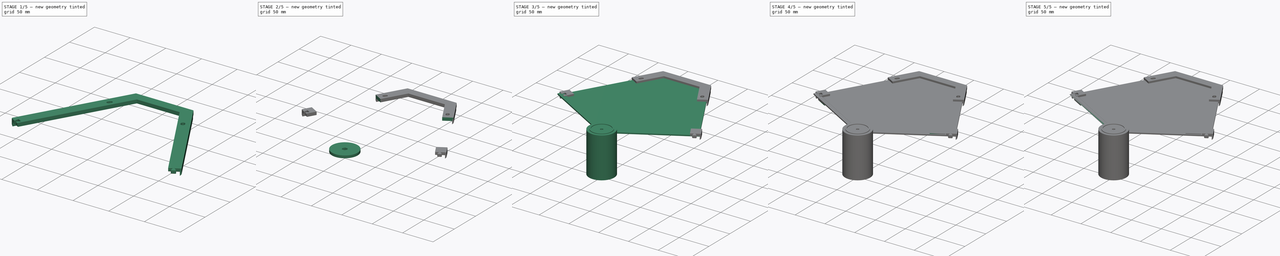
[diagram: build sequence overview — one tinted view per stage of 5, left to right]
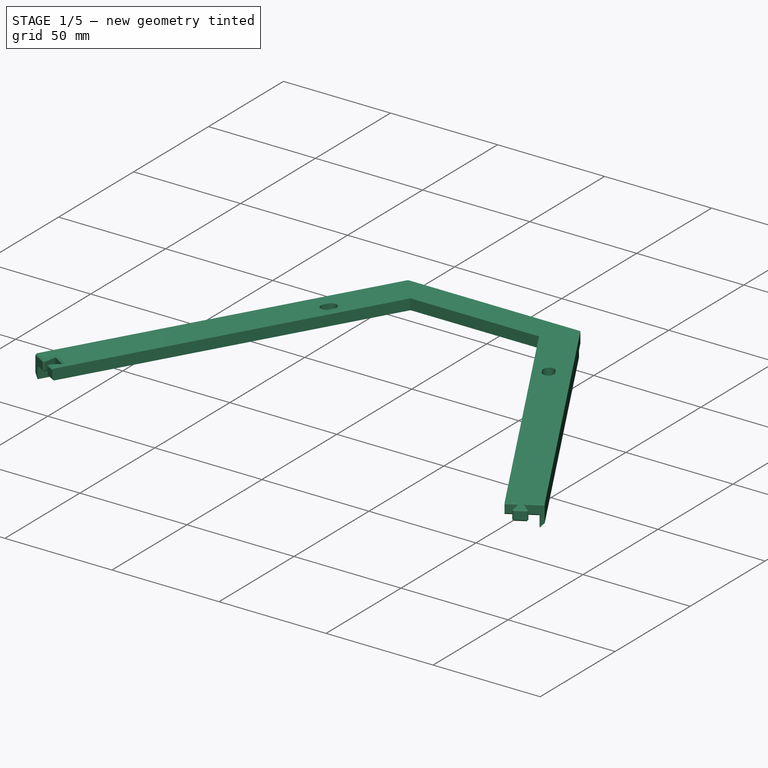
[diagram: stage 1 of 5 — iso view after this stage's code; geometry added in this stage tinted green]
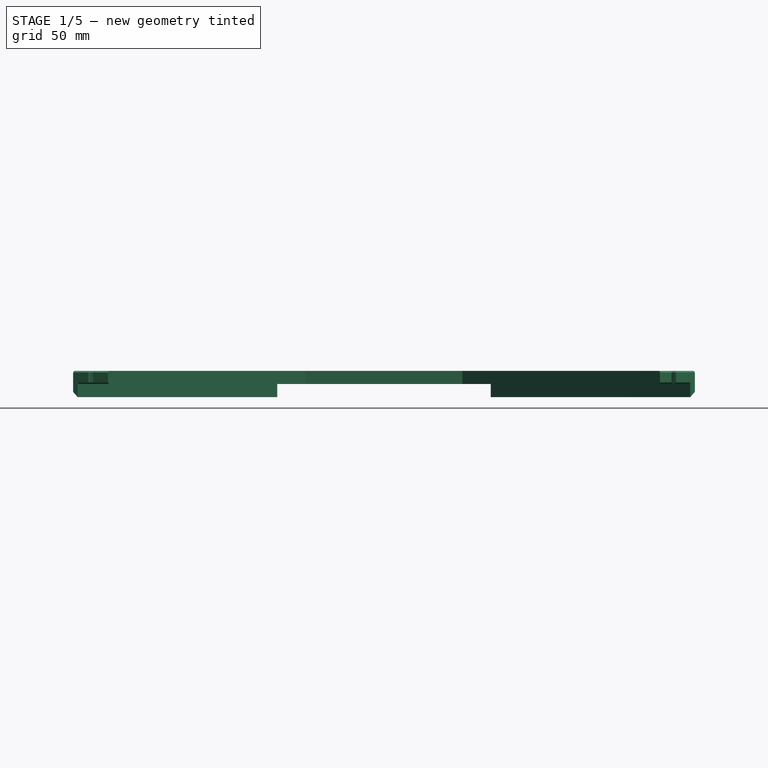
[diagram: stage 1 of 5 — front view after this stage's code; geometry added in this stage tinted green]
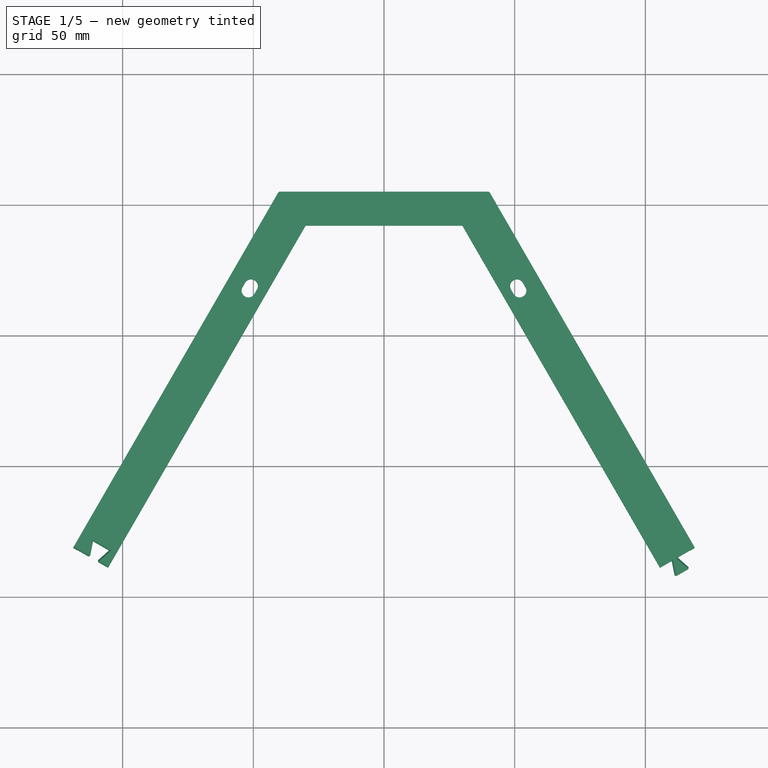
[diagram: stage 1 of 5 — top view after this stage's code; geometry added in this stage tinted green]
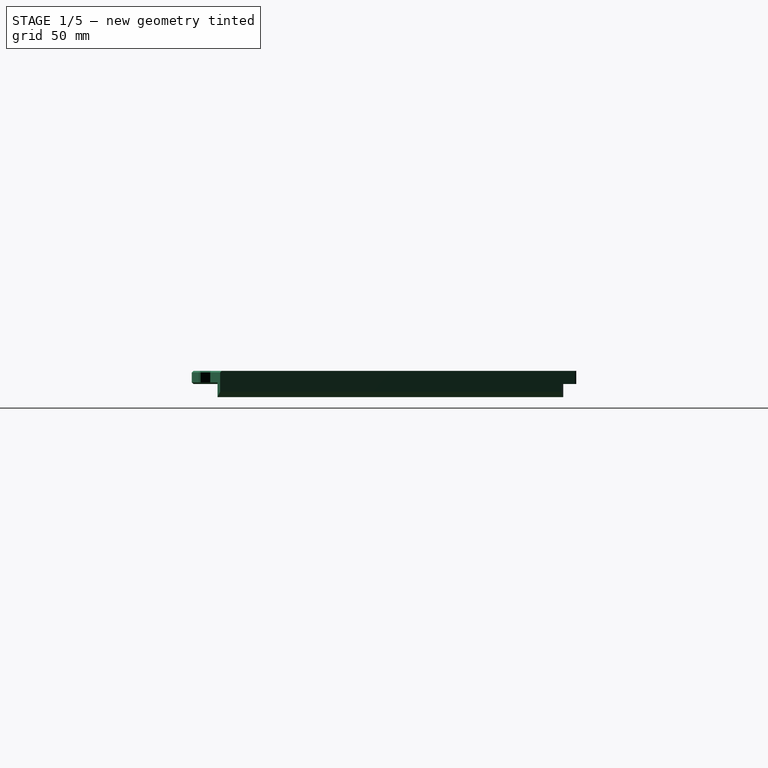
[diagram: stage 1 of 5 — right view after this stage's code; geometry added in this stage tinted green]
FCSTD DOCUMENT  (FreeCAD 0.19R24291 (Git))
Label: TopCover
License: All rights reserved
LicenseURL: http://en.wikipedia.org/wiki/All_rights_reserved
objects: Sketcher::SketchObject×23, PartDesign::Pad×11, PartDesign::Pocket×11, PartDesign::Body×9, PartDesign::ShapeBinder×7, PartDesign::Chamfer×7, PartDesign::FeatureBase×6, PartDesign::Fillet×1
note: 105 computed .brp shape members not serialized (recipe doc carries the construction recipe); baked Part::Feature solids carry a one-line shape summary decoded from their .brp

FEATURE [Sketcher::SketchObject] Sketch  label="Template"
  FullyConstrained = true
  MapMode = 5
  Support = -> [XY_Plane]
  expr: Constraints[98] = .Constraints.Tolerance
  sketch-geometry (34):
    g0: LineSegment StartX=2.84e-14 StartY=269.968 StartZ=0 EndX=-233.799 EndY=-134.984 EndZ=0
    g1: LineSegment StartX=-233.799 StartY=-134.984 StartZ=0 EndX=233.799 EndY=-134.984 EndZ=0
    g2: LineSegment StartX=233.799 StartY=-134.984 StartZ=0 EndX=2.84e-14 EndY=269.968 EndZ=0
    g3: LineSegment StartX=-37.5 StartY=205.016 StartZ=0 EndX=37.5 EndY=205.016 EndZ=0
    g4: LineSegment StartX=-196.299 StartY=-70.0321 StartZ=0 EndX=-158.799 EndY=-134.984 EndZ=0
    g5: LineSegment StartX=158.799 StartY=-134.984 StartZ=0 EndX=196.299 EndY=-70.0321 EndZ=0
    g6: LineSegment StartX=-233.799 StartY=-134.984 StartZ=0 EndX=116.9 EndY=67.492 EndZ=0
    g7: LineSegment StartX=233.799 StartY=-134.984 StartZ=0 EndX=-116.9 EndY=67.492 EndZ=0
    g8: GeomPoint X=0 Y=0 Z=0
    g9: LineSegment StartX=2.84e-14 StartY=269.968 StartZ=0 EndX=2.84e-14 EndY=-134.984 EndZ=0
    g10: GeomPoint X=1.66e-14 Y=205.016 Z=0
    g11: LineSegment StartX=-211.282 StartY=-121.984 StartZ=0 EndX=2.84e-14 EndY=243.968 EndZ=0
    g12: LineSegment StartX=-211.282 StartY=-121.984 StartZ=0 EndX=211.282 EndY=-121.984 EndZ=0
    g13: LineSegment StartX=211.282 StartY=-121.984 StartZ=0 EndX=2.84e-14 EndY=243.968 EndZ=0
    g14: LineSegment StartX=-222.541 StartY=-128.484 StartZ=0 EndX=2.84e-14 EndY=256.968 EndZ=0
    g15: LineSegment StartX=2.84e-14 StartY=256.968 StartZ=0 EndX=222.541 EndY=-128.484 EndZ=0
    g16: LineSegment StartX=-222.541 StartY=-128.484 StartZ=0 EndX=222.541 EndY=-128.484 EndZ=0
    g17: LineSegment StartX=-211.282 StartY=-121.984 StartZ=0 EndX=-216.912 EndY=-118.734 EndZ=0
    g18: LineSegment StartX=-216.912 StartY=-118.734 StartZ=0 EndX=-222.541 EndY=-115.484 EndZ=0
    g19: LineSegment StartX=2.84e-14 StartY=243.968 StartZ=0 EndX=-11.2583 EndY=250.468 EndZ=0
    g20: LineSegment StartX=2.84e-14 StartY=243.968 StartZ=0 EndX=11.2583 EndY=250.468 EndZ=0
    g21: LineSegment StartX=211.282 StartY=-121.984 StartZ=0 EndX=222.541 EndY=-115.484 EndZ=0
    g22: LineSegment StartX=211.282 StartY=-121.984 StartZ=0 EndX=211.282 EndY=-134.984 EndZ=0
    g23: LineSegment StartX=-211.282 StartY=-121.984 StartZ=0 EndX=-211.282 EndY=-134.984 EndZ=0
    g24: Circle CenterX=51.3708 CenterY=167.991 CenterZ=0 NormalX=0 NormalY=0 NormalZ=1 AngleXU=0 Radius=2.6
    g25: Circle CenterX=-51.3708 CenterY=167.991 CenterZ=0 NormalX=0 NormalY=0 NormalZ=1 AngleXU=0 Radius=2.6
    g26: Circle CenterX=-171.17 CenterY=-39.5071 CenterZ=0 NormalX=0 NormalY=0 NormalZ=1 AngleXU=0 Radius=2.6
    g27: Circle CenterX=-119.799 CenterY=-128.484 CenterZ=0 NormalX=0 NormalY=0 NormalZ=1 AngleXU=0 Radius=2.6
    g28: Circle CenterX=119.799 CenterY=-128.484 CenterZ=0 NormalX=0 NormalY=0 NormalZ=1 AngleXU=0 Radius=2.6
    g29: Circle CenterX=171.17 CenterY=-39.5071 CenterZ=0 NormalX=0 NormalY=0 NormalZ=1 AngleXU=0 Radius=2.6
    g30: LineSegment StartX=-196.299 StartY=-70.0321 StartZ=0 EndX=-185.041 EndY=-76.5321 EndZ=0
    g31: GeomPoint X=-190.67 Y=-73.2821 Z=0
    g32: LineSegment StartX=-116.85 StartY=67.5786 StartZ=0 EndX=-105.591 EndY=61.0786 EndZ=0
    g33: LineSegment StartX=105.591 StartY=61.0786 StartZ=0 EndX=116.85 EndY=67.5786 EndZ=0
  constraints (99):
    c: Coincident(g0,g1)
    c: Coincident(g1,g2)
    c: Coincident(g2,g0)
    c: Equal(g0,g2)
    c: Equal(g2,g1)
    c: PointOnObject(g3,g0)
    c: PointOnObject(g3,g2)
    c: Parallel(g3,g1)
    c: PointOnObject(g4,g0)
    c: PointOnObject(g4,g1)
    c: PointOnObject(g5,g1)
    c: PointOnObject(g5,g2)
    c: Equal(g5,g4)
    c: Equal(g4,g3)
    c: Parallel(g5,g0)
    c: Parallel(g4,g2)
    c: Horizontal(g1)
    c: Distance(g5) = 75
    c: Distance(g4,g5) = 317.598
    c: Coincident(g6,g0)
    c: PointOnObject(g6,g2)
    c: Perpendicular(g2,g6)
    c: Coincident(g7,g1)
    c: PointOnObject(g7,g0)
    c: Perpendicular(g0,g7)
    c: PointOnObject(g8,g7)
    c: PointOnObject(g8,g6)
    c: Coincident(g8,g-1)  '__ANCHOR__'
    c: Coincident(g9,g0)
    c: PointOnObject(g9,g1)
    c: Vertical(g9)
    c: PointOnObject(g10,g9)
    c: PointOnObject(g10,g3)
    c: Distance(g10,g9) = 340
    c: PointOnObject(g11,g6)
    c: PointOnObject(g11,g9)
    c: Coincident(g12,g11)
    c: PointOnObject(g12,g7)
    c: Coincident(g13,g12)
    c: Coincident(g13,g11)
    c: Parallel(g11,g0)
    c: Parallel(g13,g2)
    c: PointOnObject(g14,g6)
    c: PointOnObject(g14,g9)
    c: Coincident(g15,g14)
    c: PointOnObject(g15,g7)
    c: Parallel(g15,g2)
    c: Parallel(g14,g0)
    c: Coincident(g16,g14)
    c: Coincident(g16,g15)
    c: Coincident(g17,g11)
    c: PointOnObject(g17,g14)
    c: Coincident(g18,g17)
    c: PointOnObject(g18,g0)
    c: Perpendicular(g0,g18)
    c: Perpendicular(g0,g17)
    c: Equal(g18,g17)
    c: Distance(g18,g11) = 13
    c: Coincident(g19,g11)
    c: PointOnObject(g19,g0)
    c: Coincident(g20,g11)
    c: PointOnObject(g20,g2)
    c: Coincident(g21,g12)
    c: PointOnObject(g21,g2)
    c: Coincident(g22,g12)
    c: PointOnObject(g22,g1)
    c: Coincident(g23,g11)
    c: PointOnObject(g23,g1)
    c: Perpendicular(g1,g23)
    c: Perpendicular(g2,g21)
    c: Perpendicular(g1,g22)
    c: Perpendicular(g2,g20)
    c: Perpendicular(g0,g19)
    c: PointOnObject(g24,g15)
    c: Equal(g24,g25)
    c: Equal(g25,g26)
    c: Equal(g26,g27)
    c: Equal(g27,g28)
    c: Equal(g28,g29)
    c: Radius(g25) = 2.6
    c: Symmetric(g26,g27,g6)
    c: Symmetric(g25,g26,g7)
    c: Symmetric(g24,g25,g9)
    c: Symmetric(g24,g29,g6)
    c: Symmetric(g29,g28,g7)
    c: Coincident(g30,g4)
    c: PointOnObject(g30,g11)
    c: Perpendicular(g0,g30)
    c: PointOnObject(g31,g14)
    c: PointOnObject(g31,g30)
    c: Distance(g26,g31) = 39
    c: PointOnObject(g32,g0)
    c: PointOnObject(g32,g11)
    c: Parallel(g32,g7)
    c: PointOnObject(g33,g13)
    c: PointOnObject(g33,g2)
    c: Parallel(g33,g6)
    c: Distance(g7,g32) = 0.1  'Tolerance'
    c: Distance(g33,g6) = 0.1
FEATURE [Sketcher::SketchObject] Sketch001
  ExternalGeometry = -> [Sketch]
  FullyConstrained = true
  MapMode = 5
  Support = -> [XY_Plane]
  sketch-geometry (43):
    g0: LineSegment StartX=-116.85 StartY=67.5786 StartZ=0 EndX=-37.5 EndY=205.016 EndZ=0
    g1: LineSegment StartX=-37.5 StartY=205.016 StartZ=0 EndX=37.5 EndY=205.016 EndZ=0
    g2: LineSegment StartX=37.5 StartY=205.016 StartZ=0 EndX=116.85 EndY=67.5786 EndZ=0
    g3: LineSegment StartX=105.591 StartY=61.0786 StartZ=0 EndX=29.9944 EndY=192.016 EndZ=0
    g4: LineSegment StartX=29.9944 StartY=192.016 StartZ=0 EndX=-29.9944 EndY=192.016 EndZ=0
    g5: LineSegment StartX=-29.9944 StartY=192.016 StartZ=0 EndX=-105.591 EndY=61.0786 EndZ=0
    g6: LineSegment StartX=-29.9944 StartY=192.016 StartZ=0 EndX=-29.9944 EndY=205.016 EndZ=0
    g7: LineSegment StartX=29.9944 StartY=192.016 StartZ=0 EndX=29.9944 EndY=205.016 EndZ=0
    g8: LineSegment StartX=-29.9944 StartY=192.016 StartZ=0 EndX=-41.2528 EndY=198.516 EndZ=0
    g9: LineSegment StartX=-116.85 StartY=67.5786 StartZ=0 EndX=-116.9 EndY=67.492 EndZ=0
    g10: LineSegment StartX=-116.85 StartY=67.5786 StartZ=0 EndX=-112.548 EndY=65.0953 EndZ=0
    g11: LineSegment StartX=-112.548 StartY=65.0953 StartZ=0 EndX=-111.301 EndY=71.1881 EndZ=0
    g12: LineSegment StartX=-111.301 StartY=71.1881 StartZ=0 EndX=-105.239 EndY=67.6881 EndZ=0
    g13: LineSegment StartX=-105.239 StartY=67.6881 StartZ=0 EndX=-109.892 EndY=63.5619 EndZ=0
    g14: LineSegment StartX=-109.892 StartY=63.5619 StartZ=0 EndX=-105.591 EndY=61.0786 EndZ=0
    g15: LineSegment StartX=105.591 StartY=61.0786 StartZ=0 EndX=109.892 EndY=63.5619 EndZ=0
    g16: LineSegment StartX=116.85 StartY=67.5786 StartZ=0 EndX=112.548 EndY=65.0953 EndZ=0
    g17: LineSegment StartX=109.892 StartY=63.5619 StartZ=0 EndX=109.942 EndY=63.4753 EndZ=0
    g18: LineSegment StartX=112.548 StartY=65.0953 StartZ=0 EndX=112.598 EndY=65.0087 EndZ=0
    g19: LineSegment StartX=-112.548 StartY=65.0953 StartZ=0 EndX=-112.569 EndY=64.992 EndZ=0
    g20: LineSegment StartX=-109.892 StartY=63.5619 StartZ=0 EndX=-109.971 EndY=63.492 EndZ=0
    g21: LineSegment StartX=-111.301 StartY=71.1881 StartZ=0 EndX=-113.9 EndY=72.6881 EndZ=0
    g22: LineSegment StartX=109.942 StartY=63.4753 StartZ=0 EndX=111.189 EndY=57.3824 EndZ=0
    g23: LineSegment StartX=111.189 StartY=57.3824 StartZ=0 EndX=117.251 EndY=60.8824 EndZ=0
    g24: LineSegment StartX=117.251 StartY=60.8824 StartZ=0 EndX=112.598 EndY=65.0087 EndZ=0
    g25: LineSegment StartX=-112.548 StartY=65.0953 StartZ=0 EndX=-109.892 EndY=63.5619 EndZ=0
    g26: LineSegment StartX=109.892 StartY=63.5619 StartZ=0 EndX=110.022 EndY=63.6369 EndZ=0
    g27: LineSegment StartX=112.548 StartY=65.0953 StartZ=0 EndX=112.418 EndY=65.0203 EndZ=0
    g28: LineSegment StartX=110.085 StartY=63.5292 StartZ=0 EndX=111.295 EndY=57.6164 EndZ=0
    g29: LineSegment StartX=111.295 StartY=57.6164 StartZ=0 EndX=116.996 EndY=60.9083 EndZ=0
    g30: LineSegment StartX=116.996 StartY=60.9083 StartZ=0 EndX=112.481 EndY=64.9126 EndZ=0
    g31: LineSegment StartX=110.022 StartY=63.6369 StartZ=0 EndX=110.085 EndY=63.5292 EndZ=0
    g32: LineSegment StartX=112.418 StartY=65.0203 StartZ=0 EndX=112.481 EndY=64.9126 EndZ=0
    g33: LineSegment StartX=116.996 StartY=60.9083 StartZ=0 EndX=117.071 EndY=60.7784 EndZ=0
    g34: ArcOfCircle CenterX=-51.8708 CenterY=167.125 CenterZ=0 NormalX=0 NormalY=0 NormalZ=1 AngleXU=0 Radius=2.6 StartAngle=2.61799 EndAngle=5.75959
    g35: ArcOfCircle CenterX=-50.8708 CenterY=168.857 CenterZ=0 NormalX=0 NormalY=0 NormalZ=1 AngleXU=0 Radius=2.6 StartAngle=5.75959 EndAngle=8.90118
    g36: LineSegment StartX=-49.6192 StartY=165.825 StartZ=0 EndX=-48.6192 EndY=167.557 EndZ=0
    g37: LineSegment StartX=-54.1225 StartY=168.425 StartZ=0 EndX=-53.1225 EndY=170.157 EndZ=0
    g38: ArcOfCircle CenterX=50.8708 CenterY=168.857 CenterZ=0 NormalX=0 NormalY=0 NormalZ=1 AngleXU=0 Radius=2.6 StartAngle=0.523599 EndAngle=3.66519
    g39: ArcOfCircle CenterX=51.8708 CenterY=167.125 CenterZ=0 NormalX=0 NormalY=0 NormalZ=1 AngleXU=0 Radius=2.6 StartAngle=3.66519 EndAngle=6.80678
    g40: LineSegment StartX=48.6192 StartY=167.557 StartZ=0 EndX=49.6192 EndY=165.825 EndZ=0
    g41: LineSegment StartX=53.1225 StartY=170.157 StartZ=0 EndX=54.1225 EndY=168.425 EndZ=0
    g42: LineSegment StartX=116.996 StartY=60.9083 StartZ=0 EndX=117.096 EndY=61.0205 EndZ=0
  constraints (114):
    c: Coincident(g0,g-9)
    c: Coincident(g0,g1)
    c: Coincident(g1,g-9)
    c: Coincident(g1,g2)
    c: PointOnObject(g3,g-7)
    c: Coincident(g3,g4)
    c: PointOnObject(g4,g-4)
    c: Coincident(g4,g5)
    c: Coincident(g6,g4)
    c: PointOnObject(g6,g1)
    c: Coincident(g7,g3)
    c: PointOnObject(g7,g1)
    c: Perpendicular(g6,g1)
    c: Perpendicular(g1,g7)
    c: Equal(g6,g7)
    c: Coincident(g8,g4)
    c: PointOnObject(g8,g0)
    c: Perpendicular(g0,g8)
    c: Equal(g8,g6)
    c: Coincident(g9,g0)
    c: Coincident(g9,g-5)
    c: Coincident(g0,g10)
    c: Coincident(g10,g11)
    c: Coincident(g11,g12)
    c: Coincident(g12,g13)
    c: Coincident(g13,g14)
    c: Coincident(g14,g5)
    c: Equal(g14,g10)
    c: Parallel(g12,g-5)
    c: Distance(g12) = 7
    c: Coincident(g15,g3)
    c: Coincident(g16,g2)
    c: Equal(g14,g15)
    c: Equal(g15,g16)
    c: Coincident(g17,g15)
    c: PointOnObject(g17,g-6)
    c: Coincident(g18,g16)
    c: PointOnObject(g18,g-6)
    c: Perpendicular(g-6,g17)
    c: Perpendicular(g-6,g18)
    c: Coincident(g19,g10)
    c: PointOnObject(g19,g-5)
    c: Coincident(g20,g13)
    c: PointOnObject(g20,g-5)
    c: Parallel(g20,g13)
    c: Parallel(g19,g11)
    c: Distance(g19,g20) = 3
    c: Equal(g13,g11)
    c: Coincident(g21,g11)
    c: PointOnObject(g21,g0)
    c: Parallel(g21,g12)
    c: Distance(g21,g9) = 6
    c: Coincident(g17,g22)
    c: Coincident(g22,g23)
    c: Coincident(g23,g24)
    c: Coincident(g24,g18)
    c: Equal(g23,g12)
    c: Parallel(g23,g-6)
    c: Equal(g22,g24)
    c: Coincident(g25,g10)
    c: Coincident(g25,g13)
    c: Equal(g22,g13)
    c: Coincident(g15,g26)
    c: Coincident(g27,g16)
    c: Equal(g26,g27)
    c: Distance(g26) = 0.15
    c: Coincident(g31,g26)
    c: Coincident(g32,g27)
    c: Perpendicular(g-6,g31)
    c: Perpendicular(g-6,g32)
    c: Equal(g28,g30)
    c: Parallel(g28,g22)
    c: Parallel(g30,g24)
    c: Coincident(g33,g29)
    c: PointOnObject(g33,g23)
    c: Perpendicular(g23,g33)
    c: Equal(g27,g33)
    c: PointOnObject(g11,g-12)
    c: PointOnObject(g13,g-12)
    c: Coincident(g0,g-12)
    c: Coincident(g5,g-12)
    c: Coincident(g3,g-13)
    c: Coincident(g2,g-13)
    c: PointOnObject(g15,g-13)
    c: PointOnObject(g26,g-13)
    c: PointOnObject(g27,g-13)
    c: PointOnObject(g16,g-13)
    c: Tangent(g34,g37) = 1.5708
    c: Tangent(g34,g36) = -1.5708
    c: Tangent(g36,g35) = -1.5708
    c: Tangent(g37,g35) = 1.5708
    c: Equal(g34,g35)
    c: Parallel(g37,g0)
    c: Equal(g-10,g35)
    c: Symmetric(g34,g35,g-10)
    c: Distance(g37) = 2
    c: Tangent(g38,g41) = 1.5708
    c: Tangent(g38,g40) = -1.5708
    c: Tangent(g40,g39) = -1.5708
    c: Tangent(g41,g39) = 1.5708
    c: Equal(g38,g39)
    c: Equal(g38,g-11)
    c: Parallel(g41,g2)
    c: Symmetric(g38,g39,g-11)
    c: Equal(g40,g36)
    c: Coincident(g32,g30)
    c: Coincident(g31,g28)
    c: Coincident(g29,g30)
    c: Coincident(g29,g28)
    c: Parallel(g29,g23)
    c: Coincident(g42,g29)
    c: PointOnObject(g42,g24)
    c: Perpendicular(g24,g42)
    c: Equal(g27,g42)
FEATURE [PartDesign::Pad] Pad
  Direction = (1,1,1)
  Length = 5
  Length2 = 100
  Profile = -> Sketch001
  Refine = true
  Type = 0
FEATURE [PartDesign::Body] Body005  label="CentralDisc"
  Group = -> [ShapeBinder003,Sketch013,Pad004,Sketch014,Pad005,Sketch012,Pad006,Chamfer003,Sketch015,Pad007,Sketch016,Pocket007,Chamfer004]
  Origin = -> Origin005
  Tip = -> Chamfer004
FEATURE [Sketcher::SketchObject] Sketch017
  AttachmentOffset = pos=(0,0,5) rot=(0,0,1;0rad)
  ExternalGeometry = -> [Sketch]
  FullyConstrained = true
  MapMode = 5
  Placement = pos=(0,0,5) rot=(0,0,1;0rad)
  Support = -> [XY_Plane]
  expr: .AttachmentOffset.Base.z = <<Sketch001>>.AttachmentOffset.Base.z + Pad.Length
  sketch-geometry (9):
    g0: LineSegment StartX=-116.85 StartY=67.5786 StartZ=0 EndX=-40.5 EndY=199.82 EndZ=0
    g1: LineSegment StartX=-40.5 StartY=199.82 StartZ=0 EndX=-40.8465 EndY=200.02 EndZ=0
    g2: LineSegment StartX=-40.8465 StartY=200.02 StartZ=0 EndX=-117.196 EndY=67.7786 EndZ=0
    g3: LineSegment StartX=-117.196 StartY=67.7786 StartZ=0 EndX=-116.85 EndY=67.5786 EndZ=0
    g4: LineSegment StartX=-40.5 StartY=199.82 StartZ=0 EndX=40.5 EndY=199.82 EndZ=0
    g5: LineSegment StartX=116.85 StartY=67.5786 StartZ=0 EndX=40.5 EndY=199.82 EndZ=0
    g6: LineSegment StartX=40.5 StartY=199.82 StartZ=0 EndX=40.8465 EndY=200.02 EndZ=0
    g7: LineSegment StartX=40.8465 StartY=200.02 StartZ=0 EndX=117.196 EndY=67.7787 EndZ=0
    g8: LineSegment StartX=117.196 StartY=67.7787 StartZ=0 EndX=116.85 EndY=67.5786 EndZ=0
  constraints (24):
    c: Coincident(g-3,g0)
    c: PointOnObject(g0,g-6)
    c: Coincident(g0,g1)
    c: Coincident(g1,g2)
    c: Coincident(g2,g3)
    c: Coincident(g3,g0)
    c: Perpendicular(g-6,g3)
    c: Perpendicular(g-6,g1)
    c: Equal(g0,g2)
    c: Distance(g3) = 0.4
    c: Distance(g0,g-4) = 6
    c: Coincident(g4,g0)
    c: PointOnObject(g4,g-7)
    c: Parallel(g4,g-4)
    c: Coincident(g-5,g5)
    c: Coincident(g5,g4)
    c: Coincident(g5,g6)
    c: Coincident(g6,g7)
    c: Coincident(g7,g8)
    c: Coincident(g8,g5)
    c: Perpendicular(g-7,g8)
    c: Perpendicular(g-7,g6)
    c: Equal(g1,g6)
    c: Equal(g6,g8)
FEATURE [PartDesign::Pad] Pad008
  BaseFeature = -> Pad
  Direction = (1,1,1)
  Length = 5
  Length2 = 100
  Profile = -> Sketch017
  Refine = true
  Reversed = true
  Type = 0
  expr: Length = <<Pad>>.Length
FEATURE [Sketcher::SketchObject] Sketch018
  AttachmentOffset = pos=(0,0,5) rot=(0,0,1;0rad)
  ExternalGeometry = -> [Sketch017]
  FullyConstrained = true
  MapMode = 5
  Placement = pos=(0,0,5) rot=(0,0,1;0rad)
  Support = -> [XY_Plane]
  expr: .AttachmentOffset.Base.z = <<Sketch017>>.AttachmentOffset.Base.z
  sketch-geometry (8):
    g0: LineSegment StartX=40.8465 StartY=200.02 StartZ=0 EndX=42.5786 EndY=201.02 EndZ=0
    g1: LineSegment StartX=42.5786 StartY=201.02 StartZ=0 EndX=118.928 EndY=68.7787 EndZ=0
    g2: LineSegment StartX=118.928 StartY=68.7787 StartZ=0 EndX=117.196 EndY=67.7787 EndZ=0
    g3: LineSegment StartX=117.196 StartY=67.7787 StartZ=0 EndX=40.8465 EndY=200.02 EndZ=0
    g4: LineSegment StartX=-40.8465 StartY=200.02 StartZ=0 EndX=-117.196 EndY=67.7786 EndZ=0
    g5: LineSegment StartX=-117.196 StartY=67.7786 StartZ=0 EndX=-118.928 EndY=68.7786 EndZ=0
    g6: LineSegment StartX=-118.928 StartY=68.7786 StartZ=0 EndX=-42.5786 EndY=201.02 EndZ=0
    g7: LineSegment StartX=-42.5786 StartY=201.02 StartZ=0 EndX=-40.8465 EndY=200.02 EndZ=0
  constraints (20):
    c: Coincident(g-6,g0)
    c: Coincident(g0,g1)
    c: Coincident(g1,g2)
    c: Coincident(g2,g-5)
    c: Coincident(g2,g3)
    c: Coincident(g3,g0)
    c: Parallel(g0,g-6)
    c: Parallel(g2,g-5)
    c: Equal(g2,g0)
    c: Coincident(g-3,g4)
    c: Coincident(g4,g-4)
    c: Coincident(g4,g5)
    c: Coincident(g5,g6)
    c: Coincident(g6,g7)
    c: Coincident(g7,g4)
    c: Parallel(g7,g-3)
    c: Parallel(g5,g-4)
    c: Equal(g5,g7)
    c: Equal(g7,g0)
    c: Distance(g7) = 2
FEATURE [PartDesign::Pad] Pad009
  BaseFeature = -> Pad008
  Direction = (1,1,1)
  Length = 10
  Length2 = 100
  Profile = -> Sketch018
  Refine = true
  Reversed = true
  Type = 0
  expr: Length = <<Pad>>.Length + 5mm
FEATURE [PartDesign::ShapeBinder] ShapeBinder004
  Support = -> [Sketch]
  TraceSupport = false
FEATURE [Sketcher::SketchObject] Sketch019
  ExternalGeometry = -> [ShapeBinder004]
  FullyConstrained = true
  MapMode = 5
  Support = -> [XY_Plane006]
  sketch-geometry (6):
    g0: LineSegment StartX=-112.864 StartY=82.4824 StartZ=0 EndX=-109.4 EndY=80.4824 EndZ=0
    g1: LineSegment StartX=-109.4 StartY=80.4824 StartZ=0 EndX=25 EndY=2.88675 EndZ=0
    g2: LineSegment StartX=25 StartY=2.88675 StartZ=0 EndX=121.9 EndY=58.8317 EndZ=0
    g3: LineSegment StartX=121.9 StartY=58.8317 StartZ=0 EndX=125.364 EndY=60.8317 EndZ=0
    g4: LineSegment StartX=125.364 StartY=60.8317 StartZ=0 EndX=2.84e-14 EndY=277.968 EndZ=0
    g5: LineSegment StartX=2.84e-14 StartY=277.968 StartZ=0 EndX=-112.864 EndY=82.4824 EndZ=0
  constraints (18):
    c: PointOnObject(g0,g-5)
    c: Coincident(g0,g1)
    c: Coincident(g1,g2)
    c: PointOnObject(g2,g-6)
    c: Coincident(g2,g3)
    c: Coincident(g3,g4)
    c: Coincident(g4,g5)
    c: Coincident(g5,g0)
    c: PointOnObject(g4,g-7)
    c: Parallel(g1,g0)
    c: Parallel(g-3,g1)
    c: Parallel(g2,g3)
    c: Parallel(g2,g-4)
    c: Distance(g-3,g0) = 15
    c: Distance(g0,g0) = 4
    c: Equal(g0,g3)
    c: Parallel(g5,g-5)
    c: Distance(g-4,g2) = 10
FEATURE [PartDesign::ShapeBinder] ShapeBinder005
  Support = -> [Sketch]
  TraceSupport = false
FEATURE [Sketcher::SketchObject] Sketch020
  ExternalGeometry = -> [ShapeBinder005]
  FullyConstrained = true
  MapMode = 5
  Support = -> [XY_Plane007]
  sketch-geometry (6):
    g0: LineSegment StartX=-121.23 StartY=69.992 StartZ=0 EndX=-116.9 EndY=67.492 EndZ=0
    g1: LineSegment StartX=-116.9 StartY=67.492 StartZ=0 EndX=-15 EndY=8.66025 EndZ=0
    g2: LineSegment StartX=-15 StartY=8.66025 StartZ=0 EndX=109.4 EndY=80.4824 EndZ=0
    g3: LineSegment StartX=109.4 StartY=80.4824 StartZ=0 EndX=113.73 EndY=82.9824 EndZ=0
    g4: LineSegment StartX=113.73 StartY=82.9824 StartZ=0 EndX=2.84e-14 EndY=279.968 EndZ=0
    g5: LineSegment StartX=2.84e-14 StartY=279.968 StartZ=0 EndX=-121.23 EndY=69.992 EndZ=0
  constraints (17):
    c: Coincident(g0,g-3)
    c: Coincident(g0,g1)
    c: PointOnObject(g1,g-3)
    c: Coincident(g1,g2)
    c: PointOnObject(g2,g-7)
    c: Coincident(g2,g3)
    c: Coincident(g3,g4)
    c: Coincident(g4,g5)
    c: Coincident(g5,g0)
    c: Parallel(g0,g1)
    c: Equal(g0,g3)
    c: Parallel(g3,g2)
    c: Parallel(g2,g-4)
    c: PointOnObject(g4,g-5)
    c: Parallel(g5,g-6)
    c: Distance(g0) = 5
    c: Distance(g-4,g2) = 15
FEATURE [PartDesign::ShapeBinder] ShapeBinder006
  Support = -> [Sketch]
  TraceSupport = false
FEATURE [Sketcher::SketchObject] Sketch021
  ExternalGeometry = -> [ShapeBinder006]
  FullyConstrained = true
  MapMode = 5
  Support = -> [XY_Plane008]
  sketch-geometry (10):
    g0: LineSegment StartX=-70.6603 StartY=167.581 StartZ=0 EndX=-62 EndY=162.581 EndZ=0
    g1: LineSegment StartX=-62 StartY=162.581 StartZ=0 EndX=2.84e-14 EndY=126.785 EndZ=0
    g2: LineSegment StartX=2.84e-14 StartY=126.785 StartZ=0 EndX=62 EndY=162.581 EndZ=0
    g3: LineSegment StartX=62 StartY=162.581 StartZ=0 EndX=70.6603 EndY=167.581 EndZ=0
    g4: LineSegment StartX=70.6603 StartY=167.581 StartZ=0 EndX=245.346 EndY=-134.984 EndZ=0
    g5: LineSegment StartX=245.346 StartY=-134.984 StartZ=0 EndX=233.799 EndY=-134.984 EndZ=0
    g6: LineSegment StartX=233.799 StartY=-134.984 StartZ=0 EndX=-233.799 EndY=-134.984 EndZ=0
    g7: LineSegment StartX=-233.799 StartY=-134.984 StartZ=0 EndX=-245.346 EndY=-134.984 EndZ=0
    g8: LineSegment StartX=-245.346 StartY=-134.984 StartZ=0 EndX=-70.6603 EndY=167.581 EndZ=0
    g9: LineSegment StartX=-51.3708 StartY=167.991 StartZ=0 EndX=-56.3708 EndY=159.331 EndZ=0
  constraints (28):
    c: PointOnObject(g0,g-3)
    c: Coincident(g0,g1)
    c: PointOnObject(g1,g-7)
    c: Coincident(g1,g2)
    c: PointOnObject(g2,g-4)
    c: Coincident(g2,g3)
    c: Coincident(g3,g4)
    c: Coincident(g4,g5)
    c: Coincident(g5,g-4)
    c: Coincident(g5,g6)
    c: Coincident(g6,g-3)
    c: Coincident(g6,g7)
    c: Coincident(g7,g8)
    c: Coincident(g8,g0)
    c: Parallel(g0,g1)
    c: Parallel(g2,g3)
    c: Perpendicular(g-3,g1)
    c: Perpendicular(g-4,g2)
    c: Parallel(g7,g6)
    c: Parallel(g5,g6)
    c: Equal(g7,g5)
    c: Parallel(g8,g-3)
    c: Parallel(g4,g-4)
    c: Coincident(g9,g-6)
    c: PointOnObject(g9,g1)
    c: Perpendicular(g1,g9)
    c: Distance(g9) = 10
    c: Equal(g9,g0)
FEATURE [Sketcher::SketchObject] Sketch022
  AttachmentOffset = pos=(0,0,5) rot=(0,0,1;0rad)
  ExternalGeometry = -> [Sketch,Sketch018]
  FullyConstrained = true
  MapMode = 5
  Placement = pos=(0,0,5) rot=(0,0,1;0rad)
  Support = -> [XY_Plane]
  expr: .AttachmentOffset.Base.z = <<Sketch017>>.AttachmentOffset.Base.z
  sketch-geometry (8):
    g0: LineSegment StartX=-42.5786 StartY=201.02 StartZ=0 EndX=-40.5 EndY=199.82 EndZ=0
    g1: LineSegment StartX=-40.5 StartY=199.82 StartZ=0 EndX=-37.5 EndY=205.016 EndZ=0
    g2: LineSegment StartX=-37.5 StartY=205.016 StartZ=0 EndX=-40.2715 EndY=205.016 EndZ=0
    g3: LineSegment StartX=-40.2715 StartY=205.016 StartZ=0 EndX=-42.5786 EndY=201.02 EndZ=0
    g4: LineSegment StartX=42.5786 StartY=201.02 StartZ=0 EndX=40.5 EndY=199.82 EndZ=0
    g5: LineSegment StartX=40.5 StartY=199.82 StartZ=0 EndX=37.5 EndY=205.016 EndZ=0
    g6: LineSegment StartX=37.5 StartY=205.016 StartZ=0 EndX=40.2715 EndY=205.016 EndZ=0
    g7: LineSegment StartX=40.2715 StartY=205.016 StartZ=0 EndX=42.5786 EndY=201.02 EndZ=0
  constraints (20):
    c: Coincident(g-5,g0)
    c: PointOnObject(g0,g-3)
    c: Coincident(g0,g1)
    c: Coincident(g1,g-4)
    c: Coincident(g1,g2)
    c: Coincident(g2,g3)
    c: Coincident(g3,g0)
    c: PointOnObject(g-5,g0)
    c: Parallel(g3,g-3)
    c: Coincident(g-7,g4)
    c: PointOnObject(g4,g-6)
    c: Coincident(g4,g5)
    c: Coincident(g5,g-4)
    c: Coincident(g5,g6)
    c: Coincident(g6,g7)
    c: Coincident(g7,g4)
    c: PointOnObject(g-7,g4)
    c: Parallel(g7,g-6)
    c: Parallel(g2,g-4)
    c: Parallel(g-4,g6)
FEATURE [PartDesign::Pad] Pad010
  BaseFeature = -> Pad009
  Direction = (1,1,1)
  Length = 5
  Length2 = 100
  Profile = -> Sketch022
  Refine = true
  Reversed = true
  Type = 0
  expr: Length = <<Pad008>>.Length
FEATURE [PartDesign::Chamfer] Chamfer005
  Angle = 45
  Base = -> Pad010 [Edge14,Edge16,Edge67,Edge69]
  BaseFeature = -> Pad010
  ChamferType = 0
  FlipDirection = false
  Size = 1.99
  Size2 = 1
  SupportTransform = false
FEATURE [PartDesign::Chamfer] Chamfer006
  Angle = 45
  Base = -> Chamfer005 [Edge16,Edge17,Edge15,Edge6,Edge79,Edge66,Edge67,Edge18,Edge7,Edge65,Edge5,Edge43,Edge22,Edge24,Edge25,Edge86,Edge59,Edge57,Edge58,Edge87,Edge61,Edge55,Edge26,Edge28,Edge23,Edge27,Edge60,Edge56]
  BaseFeature = -> Chamfer005
  ChamferType = 0
  FlipDirection = false
  Size = 0.6
  Size2 = 1
  SupportTransform = false
FEATURE [PartDesign::Fillet] Fillet
  Base = -> Chamfer006 [Edge119,Edge54]
  BaseFeature = -> Chamfer006
  Radius = 1
  SupportTransform = false
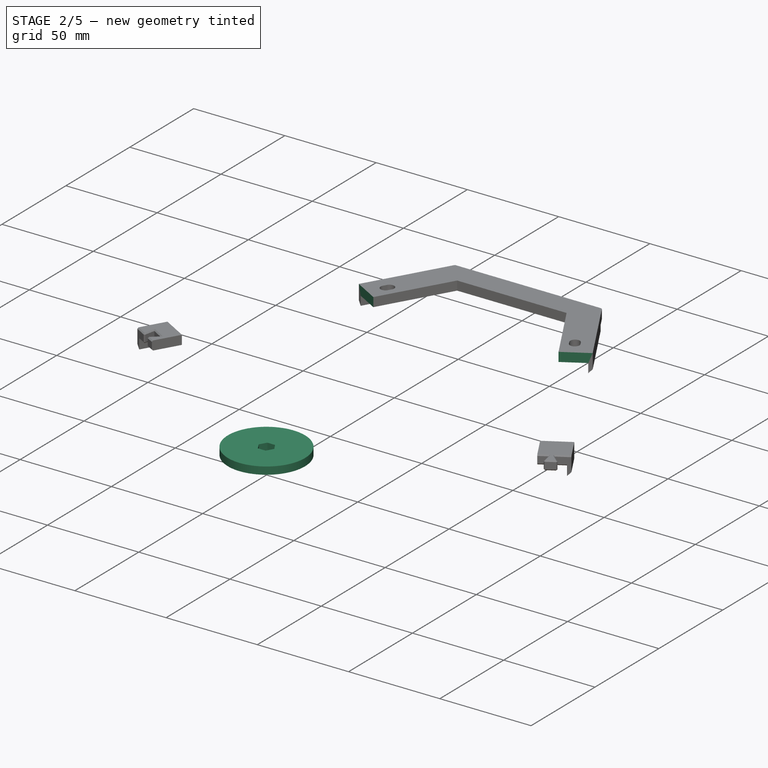
[diagram: stage 2 of 5 — iso view after this stage's code; geometry added in this stage tinted green]
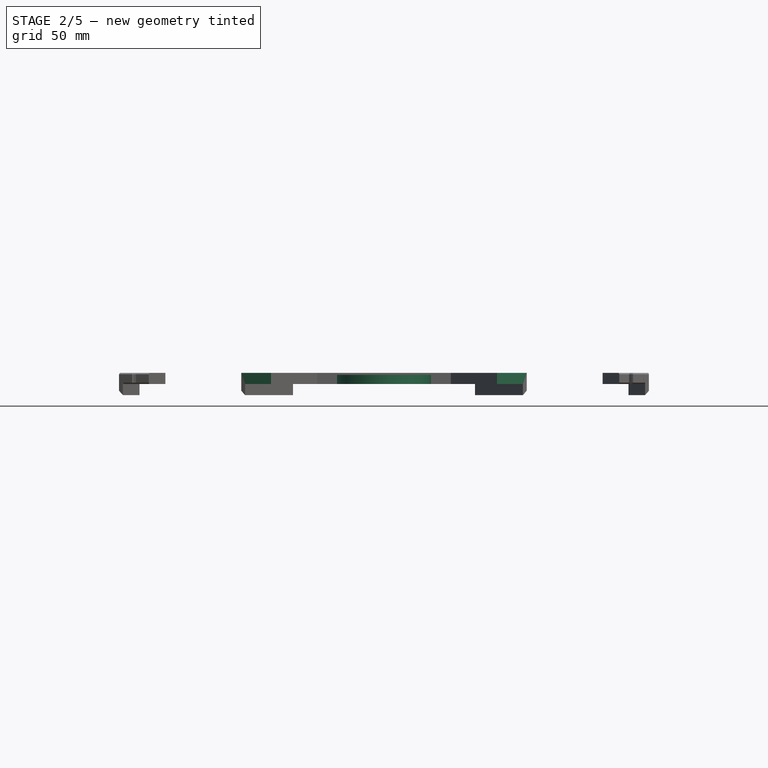
[diagram: stage 2 of 5 — front view after this stage's code; geometry added in this stage tinted green]
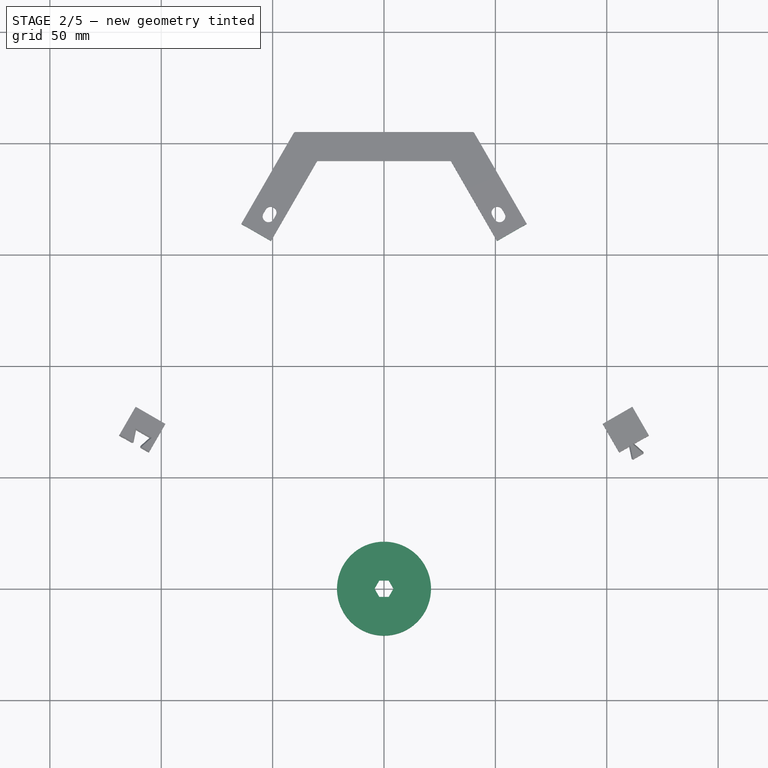
[diagram: stage 2 of 5 — top view after this stage's code; geometry added in this stage tinted green]
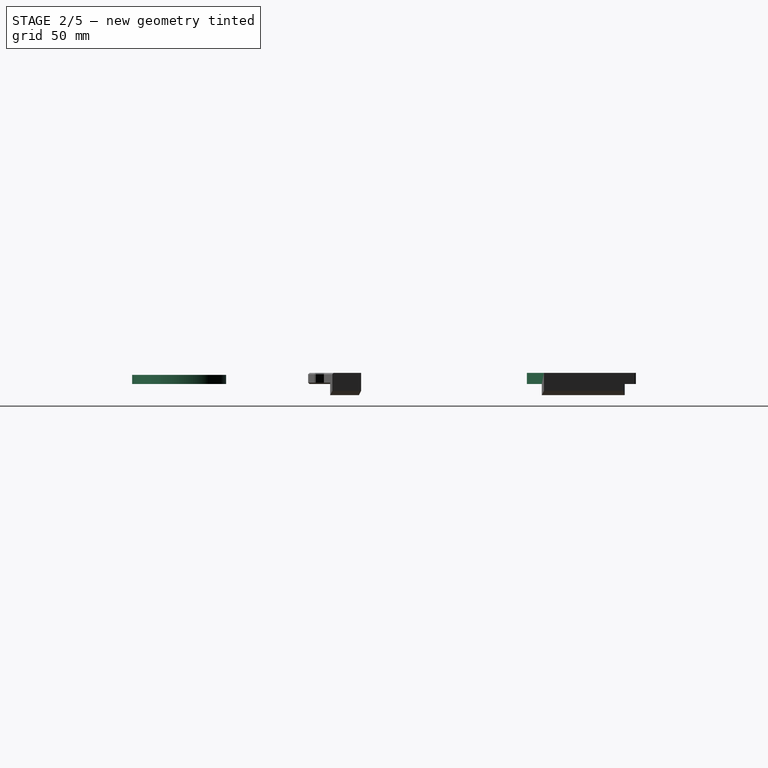
[diagram: stage 2 of 5 — right view after this stage's code; geometry added in this stage tinted green]
FEATURE [PartDesign::ShapeBinder] ShapeBinder001
  Support = -> [Sketch]
  TraceSupport = false
FEATURE [PartDesign::ShapeBinder] ShapeBinder002
  Support = -> [Sketch006]
  TraceSupport = false
FEATURE [Sketcher::SketchObject] Sketch011
  ExternalGeometry = -> [ShapeBinder001,ShapeBinder002]
  FullyConstrained = true
  MapMode = 5
  Support = -> [XY_Plane004]
  sketch-geometry (7):
    g0: LineSegment StartX=-112.9 StartY=74.4202 StartZ=0 EndX=-37.5 EndY=205.016 EndZ=0
    g1: LineSegment StartX=-37.5 StartY=205.016 StartZ=0 EndX=37.5 EndY=205.016 EndZ=0
    g2: LineSegment StartX=37.5 StartY=205.016 StartZ=0 EndX=112.9 EndY=74.4202 EndZ=0
    g3: LineSegment StartX=112.9 StartY=74.4202 StartZ=0 EndX=11.969 EndY=16.1479 EndZ=0
    g4: LineSegment StartX=-11.969 StartY=16.1479 StartZ=0 EndX=-112.9 EndY=74.4202 EndZ=0
    g5: LineSegment StartX=-3.07676 StartY=16.8209 StartZ=0 EndX=-3.61654 EndY=19.772 EndZ=0
    g6: ArcOfCircle CenterX=0 CenterY=0 CenterZ=0 NormalX=0 NormalY=0 NormalZ=1 AngleXU=0 Radius=20.1 StartAngle=0.932945 EndAngle=2.20865
  constraints (20):
    c: PointOnObject(g0,g-4)
    c: Coincident(g0,g-3)
    c: Coincident(g0,g1)
    c: Coincident(g1,g-3)
    c: Coincident(g1,g2)
    c: Coincident(g4,g0)
    c: Parallel(g4,g-7)
    c: Distance(g-7,g0) = 8
    c: Coincident(g3,g2)
    c: PointOnObject(g2,g-5)
    c: Equal(g2,g0)
    c: Parallel(g3,g-8)
    c: PointOnObject(g5,g-9)
    c: PointOnObject(g-9,g5)
    c: PointOnObject(g0,g5)
    c: Distance(g5) = 3
    c: Coincident(g-9,g6)
    c: PointOnObject(g5,g6)
    c: Coincident(g6,g3)
    c: Coincident(g6,g4)
FEATURE [PartDesign::ShapeBinder] ShapeBinder003
  Support = -> [Sketch006]
  TraceSupport = false
FEATURE [Sketcher::SketchObject] Sketch012
  AttachmentOffset = pos=(0,0,6.1) rot=(0,0,1;0rad)
  ExternalGeometry = -> [ShapeBinder003]
  FullyConstrained = true
  MapMode = 5
  Placement = pos=(0,0,6.1) rot=(0,0,1;0rad)
  Support = -> [XY_Plane005]
  expr: .AttachmentOffset.Base.z = <<Sketch014>>.AttachmentOffset.Base.z + <<Pad005>>.Length
  expr: Constraints[3] = <<CentralLocker>>.Constraints.Ro - 0.1mm
  expr: Constraints[2] = <<CentralLocker>>.Constraints.Ri + 0.1mm
  sketch-geometry (2):
    g0: Circle CenterX=0 CenterY=0 CenterZ=0 NormalX=0 NormalY=0 NormalZ=1 AngleXU=0 Radius=15
    g1: Circle CenterX=0 CenterY=0 CenterZ=0 NormalX=0 NormalY=0 NormalZ=1 AngleXU=0 Radius=17
  constraints (4):
    c: Coincident(g-3,g0)
    c: Coincident(g-3,g1)
    c: Radius(g0) = 15
    c: Radius(g1) = 17
FEATURE [Sketcher::SketchObject] Sketch013
  ExternalGeometry = -> [ShapeBinder003]
  FullyConstrained = true
  MapMode = 5
  Support = -> [XY_Plane005]
  expr: Constraints[21] = <<CentralLocker>>.Constraints.Ro + 4mm
  sketch-geometry (8):
    g0: LineSegment StartX=2.125 StartY=-3.68061 StartZ=0 EndX=4.25 EndY=0 EndZ=0
    g1: LineSegment StartX=4.25 StartY=0 StartZ=0 EndX=2.125 EndY=3.68061 EndZ=0
    g2: LineSegment StartX=2.125 StartY=3.68061 StartZ=0 EndX=-2.125 EndY=3.68061 EndZ=0
    g3: LineSegment StartX=-2.125 StartY=3.68061 StartZ=0 EndX=-4.25 EndY=-4e-16 EndZ=0
    g4: LineSegment StartX=-4.25 StartY=-4e-16 StartZ=0 EndX=-2.125 EndY=-3.68061 EndZ=0
    g5: LineSegment StartX=-2.125 StartY=-3.68061 StartZ=0 EndX=2.125 EndY=-3.68061 EndZ=0
    g6: Circle CenterX=0 CenterY=0 CenterZ=0 NormalX=0 NormalY=0 NormalZ=1 AngleXU=0 Radius=4.25
    g7: Circle CenterX=0 CenterY=0 CenterZ=0 NormalX=0 NormalY=0 NormalZ=1 AngleXU=0 Radius=21.1
  constraints (18):
    c: Coincident(g0,g1)
    c: Coincident(g1,g2)
    c: Coincident(g2,g3)
    c: Coincident(g3,g4)
    c: Coincident(g4,g5)
    c: Coincident(g5,g0)
    c: Equal(g0, g1-g5) x5
    c: PointOnObject(g0,g6)
    c: PointOnObject(g1,g6)
    c: PointOnObject(g2,g6)
    c: PointOnObject(g3,g6)
    c: PointOnObject(g4,g6)
    c: PointOnObject(g5,g6)
    c: Radius(g6) = 4.25
    c: Coincident(g-3,g6)
    c: Horizontal(g2)
    c: Coincident(g-3,g7)
    c: Radius(g7) = 21.1
FEATURE [PartDesign::Pad] Pad004
  Direction = (1,1,1)
  Length = 4.1
  Length2 = 100
  Profile = -> Sketch013
  Type = 0
FEATURE [PartDesign::Body] Body  label="Frame"
  Group = -> [Sketch,Sketch001,Pad,Sketch017,Pad008,Sketch018,Pad009,Sketch022,Pad010,Chamfer005,Chamfer006,Fillet]
  Origin = -> Origin
  Tip = -> Fillet
FEATURE [PartDesign::FeatureBase] Clone003
  BaseFeature = -> Body
FEATURE [PartDesign::Pocket] Pocket008
  BaseFeature = -> Clone003
  Length = 5
  Length2 = 100
  Midplane = true
  Profile = -> Sketch019
  Type = 1
FEATURE [PartDesign::Body] Body006  label="FrameEndTest_1"
  BaseFeature = -> Body
  Group = -> [Clone003,ShapeBinder004,Sketch019,Pocket008]
  Origin = -> Origin006
  Tip = -> Pocket008
FEATURE [PartDesign::FeatureBase] Clone004
  BaseFeature = -> Body
FEATURE [PartDesign::Pocket] Pocket009
  BaseFeature = -> Clone004
  Length = 5
  Length2 = 100
  Midplane = true
  Profile = -> Sketch020
  Type = 1
FEATURE [PartDesign::Body] Body007  label="FrameEndTest_2"
  BaseFeature = -> Body
  Group = -> [Clone004,ShapeBinder005,Sketch020,Pocket009]
  Origin = -> Origin007
  Tip = -> Pocket009
FEATURE [PartDesign::FeatureBase] Clone005
  BaseFeature = -> Body
FEATURE [PartDesign::Pocket] Pocket010
  BaseFeature = -> Clone005
  Length = 5
  Length2 = 100
  Midplane = true
  Profile = -> Sketch021
  Type = 1
FEATURE [PartDesign::Body] Body008  label="FrameCornerTest"
  BaseFeature = -> Body
  Group = -> [Clone005,ShapeBinder006,Sketch021,Pocket010]
  Origin = -> Origin008
  Tip = -> Pocket010
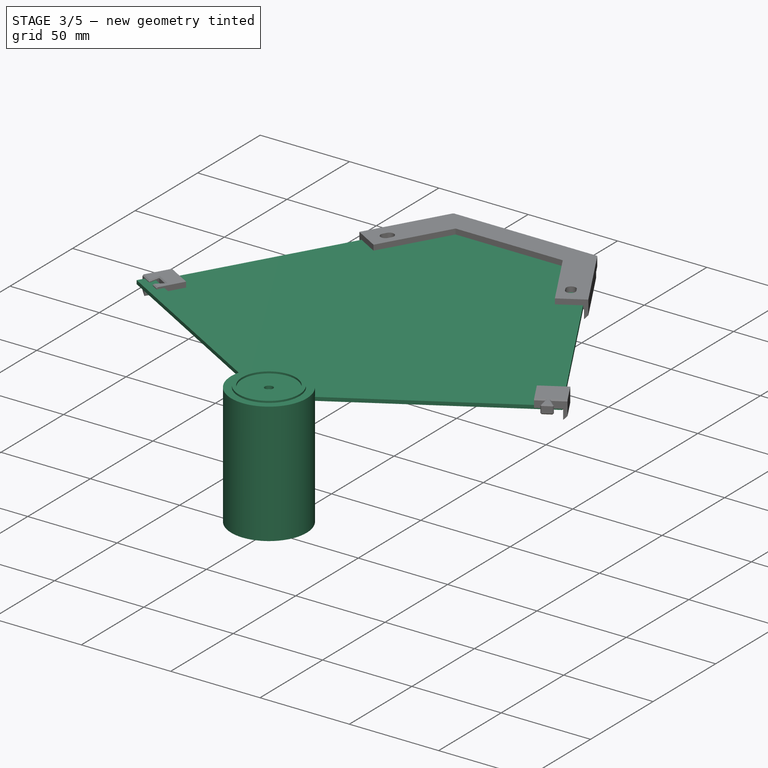
[diagram: stage 3 of 5 — iso view after this stage's code; geometry added in this stage tinted green]
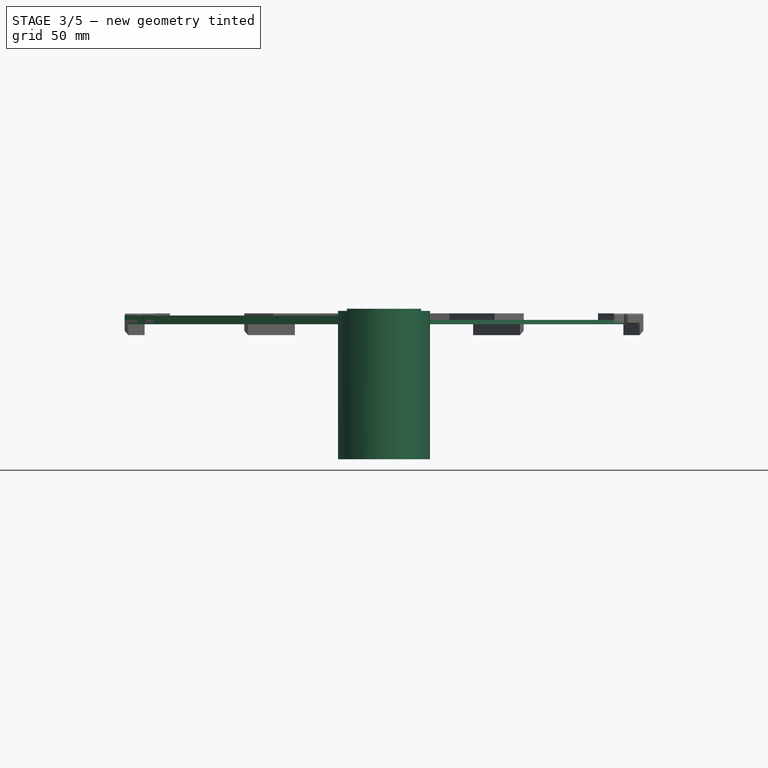
[diagram: stage 3 of 5 — front view after this stage's code; geometry added in this stage tinted green]
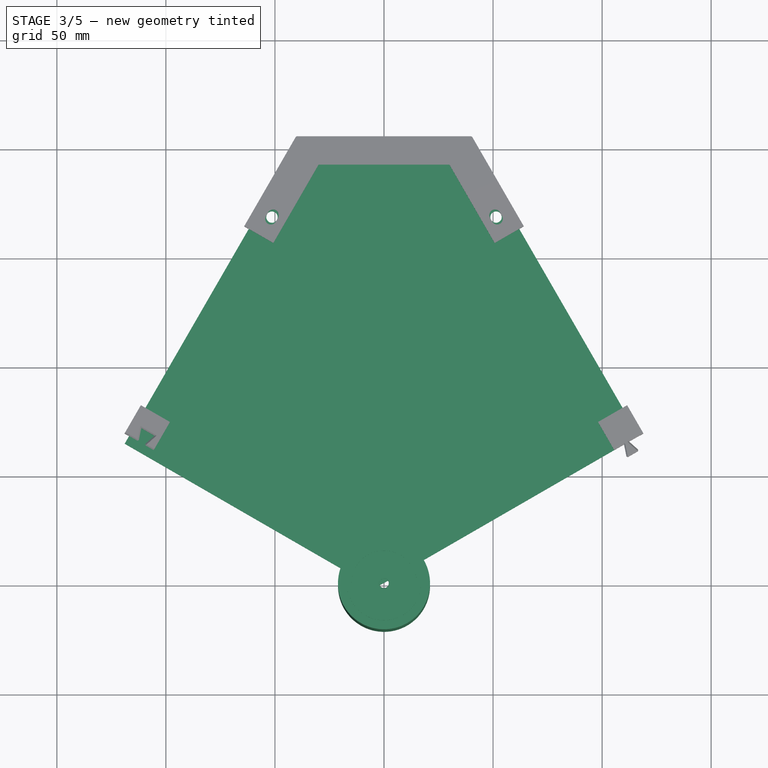
[diagram: stage 3 of 5 — top view after this stage's code; geometry added in this stage tinted green]
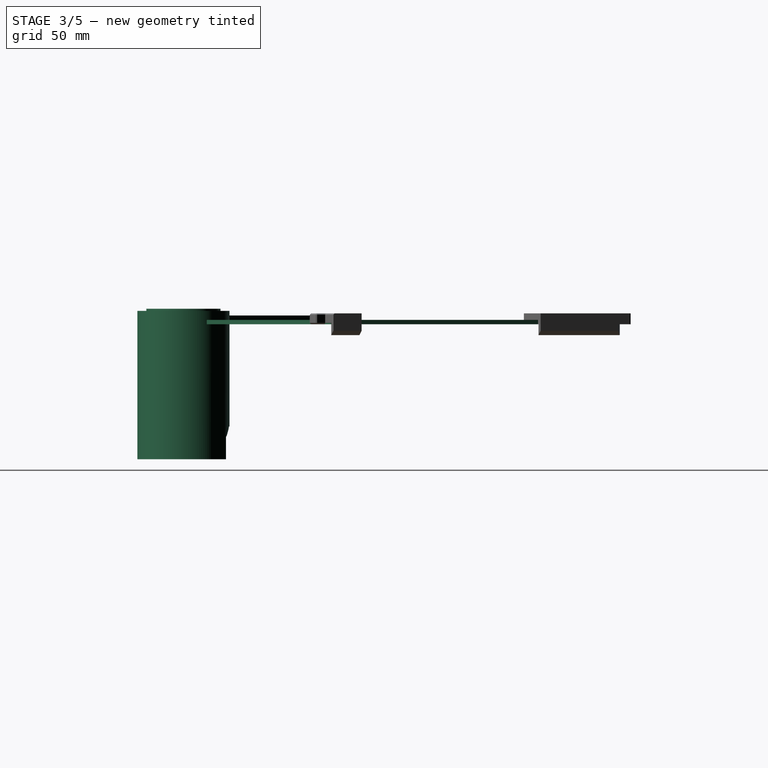
[diagram: stage 3 of 5 — right view after this stage's code; geometry added in this stage tinted green]
FEATURE [PartDesign::ShapeBinder] ShapeBinder
  Support = -> [Sketch]
  TraceSupport = false
FEATURE [Sketcher::SketchObject] Sketch002
  ExternalGeometry = -> [ShapeBinder]
  FullyConstrained = true
  MapMode = 5
  Support = -> [XY_Plane001]
  sketch-geometry (7):
    g0: LineSegment StartX=-116.825 StartY=67.6219 StartZ=0 EndX=-37.5 EndY=205.016 EndZ=0
    g1: LineSegment StartX=-37.5 StartY=205.016 StartZ=0 EndX=37.5 EndY=205.016 EndZ=0
    g2: LineSegment StartX=37.5 StartY=205.016 StartZ=0 EndX=116.825 EndY=67.6219 EndZ=0
    g3: LineSegment StartX=116.825 StartY=67.6219 StartZ=0 EndX=-2.84e-14 EndY=0.173205 EndZ=0
    g4: LineSegment StartX=-2.84e-14 StartY=0.173205 StartZ=0 EndX=-116.825 EndY=67.6219 EndZ=0
    g5: Circle CenterX=-51.3708 CenterY=167.991 CenterZ=0 NormalX=0 NormalY=0 NormalZ=1 AngleXU=0 Radius=2.6
    g6: Circle CenterX=51.3708 CenterY=167.991 CenterZ=0 NormalX=0 NormalY=0 NormalZ=1 AngleXU=0 Radius=2.6
  constraints (17):
    c: Coincident(g0,g-5)
    c: Coincident(g0,g1)
    c: Coincident(g1,g-5)
    c: Coincident(g1,g2)
    c: Coincident(g3,g4)
    c: Coincident(g5,g-9)
    c: Coincident(g6,g-8)
    c: Equal(g5,g-9)
    c: Equal(g6,g-8)
    c: Coincident(g0,g4)
    c: Coincident(g3,g2)
    c: PointOnObject(g2,g-7)
    c: PointOnObject(g0,g-3)
    c: Parallel(g4,g-10)
    c: Parallel(g3,g-11)
    c: PointOnObject(g3,g-12)
    c: Distance(g-10,g0) = 0.15
FEATURE [PartDesign::Pad] Pad001
  Direction = (1,1,1)
  Length = 2
  Length2 = 100
  Profile = -> Sketch002
  Type = 0
FEATURE [Sketcher::SketchObject] Sketch003
  AttachmentOffset = pos=(0,0,2) rot=(0,0,1;0rad)
  ExternalGeometry = -> [ShapeBinder]
  FullyConstrained = true
  MapMode = 5
  Placement = pos=(0,0,2) rot=(0,0,1;0rad)
  Support = -> [XY_Plane001]
  expr: .AttachmentOffset.Base.z = <<Sketch002>>.AttachmentOffset.Base.z + Pad001.Length
  sketch-geometry (5):
    g0: LineSegment StartX=-118.9 StartY=64.0279 StartZ=0 EndX=-114.9 EndY=70.9561 EndZ=0
    g1: LineSegment StartX=-114.9 StartY=70.9561 StartZ=0 EndX=-0.173205 EndY=4.7188 EndZ=0
    g2: LineSegment StartX=-0.173205 StartY=4.7188 StartZ=0 EndX=-0.173205 EndY=0.1 EndZ=0
    g3: LineSegment StartX=-0.173205 StartY=0.1 StartZ=0 EndX=-4.17321 EndY=-2.2094 EndZ=0
    g4: LineSegment StartX=-4.17321 StartY=-2.2094 StartZ=0 EndX=-118.9 EndY=64.0279 EndZ=0
  constraints (14):
    c: PointOnObject(g0,g-4)
    c: Coincident(g0,g1)
    c: Coincident(g1,g2)
    c: Coincident(g2,g3)
    c: Coincident(g3,g4)
    c: Coincident(g4,g0)
    c: Parallel(g-3,g1)
    c: Parallel(g1,g4)
    c: Symmetric(g0,g0,g-3)
    c: Distance(g0) = 8
    c: PointOnObject(g2,g-3)
    c: Parallel(g3,g-5)
    c: Parallel(g2,g-6)
    c: Distance(g-1,g2) = 0.2
FEATURE [Sketcher::SketchObject] Sketch004
  FullyConstrained = true
  MapMode = 5
  Support = -> [XY_Plane001]
  sketch-geometry (1):
    g0: Circle CenterX=0 CenterY=0 CenterZ=0 NormalX=0 NormalY=0 NormalZ=1 AngleXU=0 Radius=2.2
  constraints (2):
    c: Coincident(g0,g-1)
    c: Radius(g0) = 2.2
FEATURE [Sketcher::SketchObject] Sketch005
  AttachmentOffset = pos=(0,0,2) rot=(0,0,1;0rad)
  FullyConstrained = true
  MapMode = 5
  Placement = pos=(0,0,2) rot=(0,0,1;0rad)
  Support = -> [XY_Plane001]
  expr: .AttachmentOffset.Base.z = <<Sketch003>>.AttachmentOffset.Base.z
  sketch-geometry (1):
    g0: Circle CenterX=0 CenterY=0 CenterZ=0 NormalX=0 NormalY=0 NormalZ=1 AngleXU=0 Radius=6.2
  constraints (2):
    c: Coincident(g0,g-1)
    c: Radius(g0) = 6.2
FEATURE [Sketcher::SketchObject] Sketch006  label="CentralLocker"
  FullyConstrained = true
  MapMode = 5
  Support = -> [XY_Plane001]
  sketch-geometry (2):
    g0: Circle CenterX=0 CenterY=0 CenterZ=0 NormalX=0 NormalY=0 NormalZ=1 AngleXU=0 Radius=17.1
    g1: Circle CenterX=0 CenterY=0 CenterZ=0 NormalX=0 NormalY=0 NormalZ=1 AngleXU=0 Radius=14.9
  constraints (4):
    c: Coincident(g0,g-1)
    c: Coincident(g1,g0)
    c: Radius(g1) = 14.9  'Ri'
    c: Radius(g0) = 17.1  'Ro'
FEATURE [Sketcher::SketchObject] Sketch007
  AttachmentOffset = pos=(0,0,2.2) rot=(0,0,1;0rad)
  ExternalGeometry = -> [Sketch002,Sketch003]
  FullyConstrained = true
  MapMode = 5
  Placement = pos=(0,0,2.2) rot=(0,0,1;0rad)
  Support = -> [XY_Plane001]
  expr: .AttachmentOffset.Base.z = <<Sketch003>>.AttachmentOffset.Base.z + 0.2mm
  sketch-geometry (4):
    g0: LineSegment StartX=-116.825 StartY=67.6219 StartZ=0 EndX=0 EndY=0.173205 EndZ=0
    g1: LineSegment StartX=0 StartY=0.173205 StartZ=0 EndX=-4.17321 EndY=-2.2094 EndZ=0
    g2: LineSegment StartX=-4.17321 StartY=-2.2094 StartZ=0 EndX=-118.9 EndY=64.0279 EndZ=0
    g3: LineSegment StartX=-118.9 StartY=64.0279 StartZ=0 EndX=-116.825 EndY=67.6219 EndZ=0
  constraints (8):
    c: Coincident(g-3,g0)
    c: Coincident(g0,g-3)
    c: Coincident(g0,g1)
    c: Coincident(g1,g-4)
    c: Coincident(g1,g2)
    c: Coincident(g2,g-4)
    c: Coincident(g2,g3)
    c: Coincident(g3,g0)
FEATURE [PartDesign::Pad] Pad002
  BaseFeature = -> Pad001
  Direction = (1,1,1)
  Length = 2
  Length2 = 100
  Profile = -> Sketch003
  Refine = true
  Type = 0
FEATURE [Sketcher::SketchObject] Sketch014
  AttachmentOffset = pos=(0,0,4.1) rot=(0,0,1;0rad)
  ExternalGeometry = -> [Sketch013]
  FullyConstrained = true
  MapMode = 5
  Placement = pos=(0,0,4.1) rot=(0,0,1;0rad)
  Support = -> [XY_Plane005]
  expr: .AttachmentOffset.Base.z = <<Sketch013>>.AttachmentOffset.Base.z + <<Pad004>>.Length
  sketch-geometry (2):
    g0: Circle CenterX=0 CenterY=0 CenterZ=0 NormalX=0 NormalY=0 NormalZ=1 AngleXU=0 Radius=2.2
    g1: Circle CenterX=0 CenterY=0 CenterZ=0 NormalX=0 NormalY=0 NormalZ=1 AngleXU=0 Radius=21.1
  constraints (4):
    c: Radius(g0) = 2.2
    c: Coincident(g-3,g0)
    c: Coincident(g-3,g1)
    c: Equal(g1,g-3)
FEATURE [PartDesign::Pad] Pad005
  BaseFeature = -> Pad004
  Direction = (1,1,1)
  Length = 2
  Length2 = 100
  Profile = -> Sketch014
  Refine = true
  Type = 0
FEATURE [PartDesign::Pad] Pad006
  BaseFeature = -> Pad005
  Direction = (1,1,1)
  Length = 1
  Length2 = 100
  Profile = -> Sketch012
  Type = 0
FEATURE [PartDesign::Chamfer] Chamfer003
  Angle = 45
  Base = -> Pad006 [Edge27,Edge30]
  BaseFeature = -> Pad006
  ChamferType = 0
  FlipDirection = false
  Refine = true
  Size = 0.2
  Size2 = 1
  SupportTransform = false
FEATURE [Sketcher::SketchObject] Sketch015
  ExternalGeometry = -> [Sketch013]
  FullyConstrained = true
  MapMode = 5
  Support = -> [XY_Plane005]
  sketch-geometry (3):
    g0: Circle CenterX=0 CenterY=0 CenterZ=0 NormalX=0 NormalY=0 NormalZ=1 AngleXU=0 Radius=21.1
    g1: Circle CenterX=0 CenterY=0 CenterZ=0 NormalX=0 NormalY=0 NormalZ=1 AngleXU=0 Radius=18.1
    g2: LineSegment StartX=0 StartY=21.1 StartZ=0 EndX=0 EndY=18.1 EndZ=0
  constraints (8):
    c: Coincident(g1,g0)
    c: Coincident(g-3,g0)
    c: Equal(g0,g-3)
    c: PointOnObject(g2,g0)
    c: PointOnObject(g2,g1)
    c: PointOnObject(g0,g2)
    c: Vertical(g2)
    c: Distance(g2) = 3
FEATURE [PartDesign::Pad] Pad007
  BaseFeature = -> Chamfer003
  Direction = (1,1,1)
  Length = 61.9
  Length2 = 100
  Profile = -> Sketch015
  Refine = true
  Reversed = true
  Type = 0
  expr: Length = 68mm - (<<Pad004>>.Length + <<Pad005>>.Length)
FEATURE [Sketcher::SketchObject] Sketch016
  AttachmentOffset = pos=(0,0,-61.9) rot=(0,0,1;0rad)
  ExternalGeometry = -> [Sketch013,Sketch015]
  FullyConstrained = true
  MapMode = 5
  Placement = pos=(0,0,-61.9) rot=(0,0,1;0rad)
  Support = -> [XY_Plane005]
  expr: .AttachmentOffset.Base.z = -<<Pad007>>.Length
  sketch-geometry (22):
    g0: ArcOfCircle CenterX=0 CenterY=0 CenterZ=0 NormalX=0 NormalY=0 NormalZ=1 AngleXU=0 Radius=21.1 StartAngle=1.1781 EndAngle=1.9635
    g1: LineSegment StartX=-8.07462 StartY=19.4939 StartZ=0 EndX=0 EndY=0 EndZ=0
    g2: LineSegment StartX=0 StartY=0 StartZ=0 EndX=8.07462 EndY=19.4939 EndZ=0
    g3: ArcOfCircle CenterX=0 CenterY=0 CenterZ=0 NormalX=0 NormalY=0 NormalZ=1 AngleXU=0 Radius=18.1 StartAngle=1.10838 EndAngle=2.03321
    g4: LineSegment StartX=-8.07462 StartY=19.4939 StartZ=0 EndX=-8.07462 EndY=16.1991 EndZ=0
    g5: LineSegment StartX=8.07462 StartY=19.4939 StartZ=0 EndX=8.07462 EndY=16.1991 EndZ=0
    g6: LineSegment StartX=-8.07462 StartY=19.4939 StartZ=0 EndX=8.07462 EndY=19.4939 EndZ=0
    g7: ArcOfCircle CenterX=0 CenterY=0 CenterZ=0 NormalX=0 NormalY=0 NormalZ=1 AngleXU=0 Radius=21.1 StartAngle=2.74889 EndAngle=3.53429
    g8: ArcOfCircle CenterX=0 CenterY=0 CenterZ=0 NormalX=0 NormalY=0 NormalZ=1 AngleXU=0 Radius=21.1 StartAngle=4.31969 EndAngle=5.10509
    g9: ArcOfCircle CenterX=0 CenterY=0 CenterZ=0 NormalX=0 NormalY=0 NormalZ=1 AngleXU=0 Radius=21.1 StartAngle=5.89049 EndAngle=6.67588
    g10: LineSegment StartX=-19.4939 StartY=8.07462 StartZ=0 EndX=-19.4939 EndY=-8.07462 EndZ=0
    g11: LineSegment StartX=-8.07462 StartY=-19.4939 StartZ=0 EndX=8.07462 EndY=-19.4939 EndZ=0
    g12: LineSegment StartX=19.4939 StartY=8.07462 StartZ=0 EndX=19.4939 EndY=-8.07462 EndZ=0
    g13: LineSegment StartX=-19.4939 StartY=8.07462 StartZ=0 EndX=-16.1991 EndY=8.07462 EndZ=0
    g14: LineSegment StartX=-19.4939 StartY=-8.07462 StartZ=0 EndX=-16.1991 EndY=-8.07462 EndZ=0
    g15: LineSegment StartX=-8.07462 StartY=-19.4939 StartZ=0 EndX=-8.07462 EndY=-16.1991 EndZ=0
    g16: LineSegment StartX=8.07462 StartY=-19.4939 StartZ=0 EndX=8.07462 EndY=-16.1991 EndZ=0
    g17: LineSegment StartX=19.4939 StartY=8.07462 StartZ=0 EndX=16.1991 EndY=8.07462 EndZ=0
    g18: LineSegment StartX=19.4939 StartY=-8.07462 StartZ=0 EndX=16.1991 EndY=-8.07462 EndZ=0
    g19: ArcOfCircle CenterX=0 CenterY=0 CenterZ=0 NormalX=0 NormalY=0 NormalZ=1 AngleXU=0 Radius=18.1 StartAngle=2.67918 EndAngle=3.60401
    g20: ArcOfCircle CenterX=0 CenterY=0 CenterZ=0 NormalX=0 NormalY=0 NormalZ=1 AngleXU=0 Radius=18.1 StartAngle=5.82077 EndAngle=6.7456
    g21: ArcOfCircle CenterX=0 CenterY=0 CenterZ=0 NormalX=0 NormalY=0 NormalZ=1 AngleXU=0 Radius=18.1 StartAngle=4.24997 EndAngle=5.1748
  constraints (60):
    c: PointOnObject(g0,g-3)
    c: Coincident(g-3,g0)
    c: Coincident(g1,g0)
    c: Coincident(g2,g1)
    c: Coincident(g2,g0)
    c: Coincident(g-3,g1)
    c: Angle(g2,g1) = 0.785398
    c: Coincident(g4,g0)
    c: Vertical(g4)
    c: Coincident(g5,g0)
    c: Vertical(g5)
    c: Coincident(g-3,g3)
    c: Coincident(g3,g4)
    c: Coincident(g5,g3)
    c: Coincident(g6,g0)
    c: Coincident(g6,g0)
    c: Coincident(g-3,g7)
    c: Coincident(g-3,g9)
    c: Coincident(g-3,g8)
    c: Coincident(g10,g7)
    c: Coincident(g10,g7)
    c: Vertical(g10)
    c: Coincident(g11,g8)
    c: Horizontal(g11)
    c: PointOnObject(g7,g-3)
    c: Coincident(g8,g11)
    c: PointOnObject(g8,g-3)
    c: Coincident(g12,g9)
    c: Coincident(g12,g9)
    c: Vertical(g12)
    c: PointOnObject(g9,g-3)
    c: Equal(g6,g10)
    c: Equal(g10,g11)
    c: Equal(g11,g12)
    c: Coincident(g13,g7)
    c: Horizontal(g13)
    c: Coincident(g14,g7)
    c: Horizontal(g14)
    c: Coincident(g15,g8)
    c: Vertical(g15)
    c: Coincident(g16,g8)
    c: Vertical(g16)
    c: Coincident(g17,g9)
    c: Horizontal(g17)
    c: Coincident(g18,g9)
    c: Horizontal(g18)
    c: Equal(g5,g18)
    c: Equal(g18,g15)
    c: Equal(g15,g13)
    c: Coincident(g19,g13)
    c: Coincident(g19,g14)
    c: Coincident(g20,g17)
    c: Coincident(g20,g18)
    c: Coincident(g21,g15)
    c: Coincident(g21,g16)
    c: Coincident(g-3,g19)
    c: Coincident(g-3,g21)
    c: Coincident(g-3,g20)
    c: Horizontal(g6)
    c: PointOnObject(g3,g-4)
FEATURE [PartDesign::Pocket] Pocket007
  BaseFeature = -> Pad007
  Length = 15
  Length2 = 100
  Profile = -> Sketch016
  Reversed = true
  Type = 0
FEATURE [PartDesign::Body] Body004  label="CoverTest"
  BaseFeature = -> Body001
  Group = -> [Clone002,ShapeBinder001,ShapeBinder002,Sketch011,Pocket006]
  Origin = -> Origin004
  Tip = -> Pocket006
FEATURE [PartDesign::Chamfer] Chamfer004
  Angle = 45
  Base = -> Pocket007 [Edge44,Edge42]
  BaseFeature = -> Pocket007
  ChamferType = 0
  FlipDirection = false
  Size = 5
  Size2 = 1
  SupportTransform = false
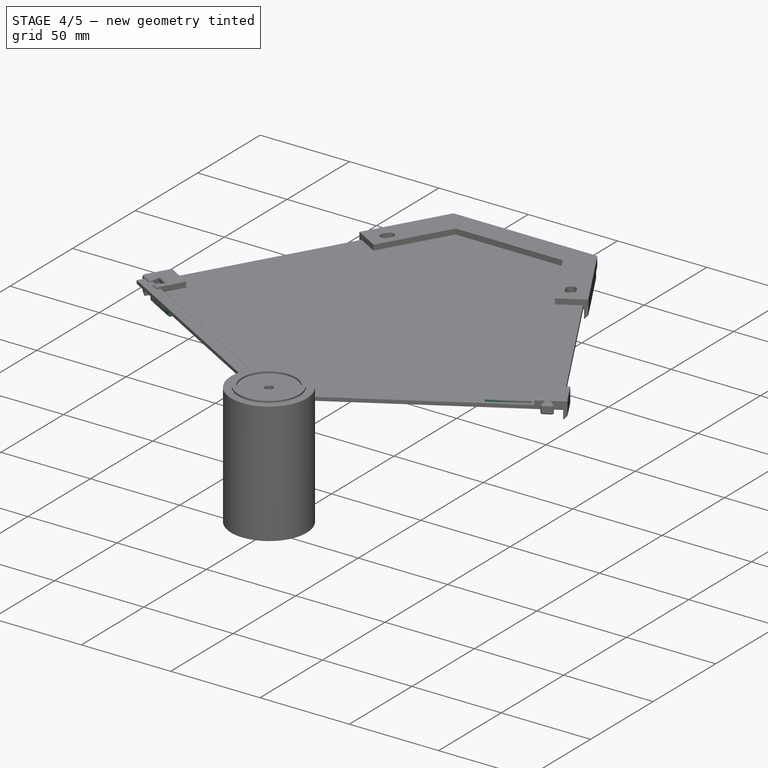
[diagram: stage 4 of 5 — iso view after this stage's code; geometry added in this stage tinted green]
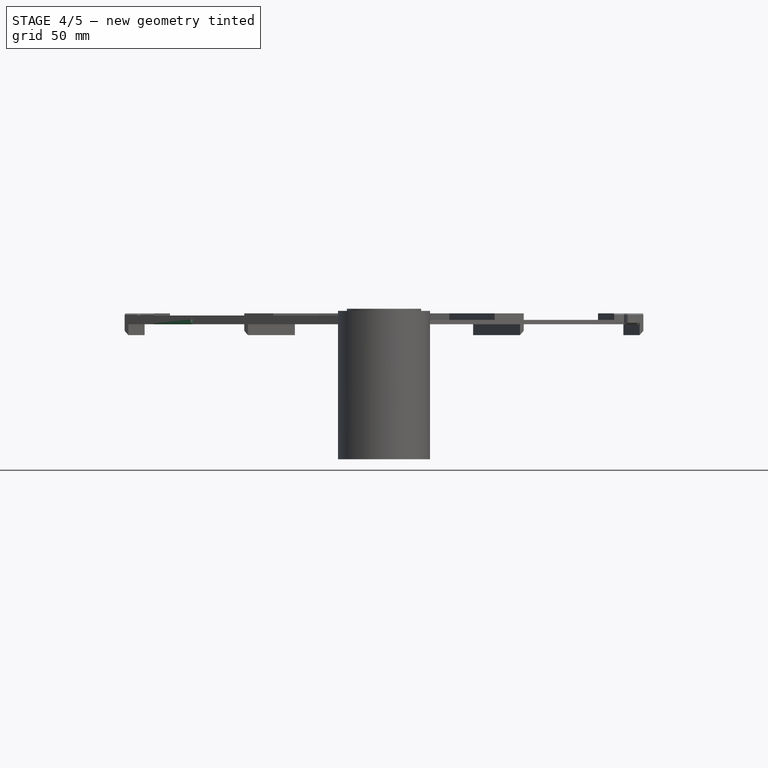
[diagram: stage 4 of 5 — front view after this stage's code; geometry added in this stage tinted green]
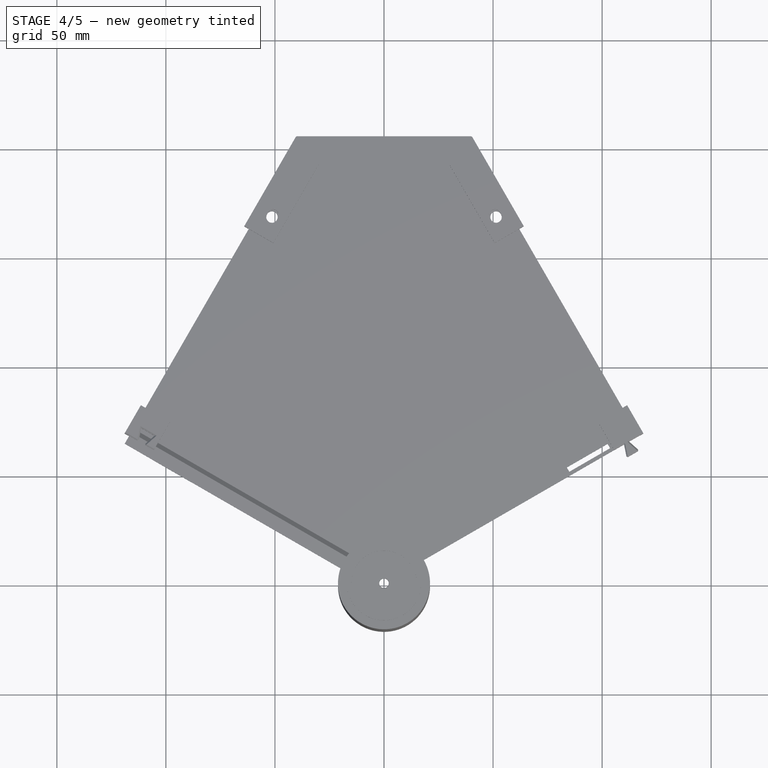
[diagram: stage 4 of 5 — top view after this stage's code; geometry added in this stage tinted green]
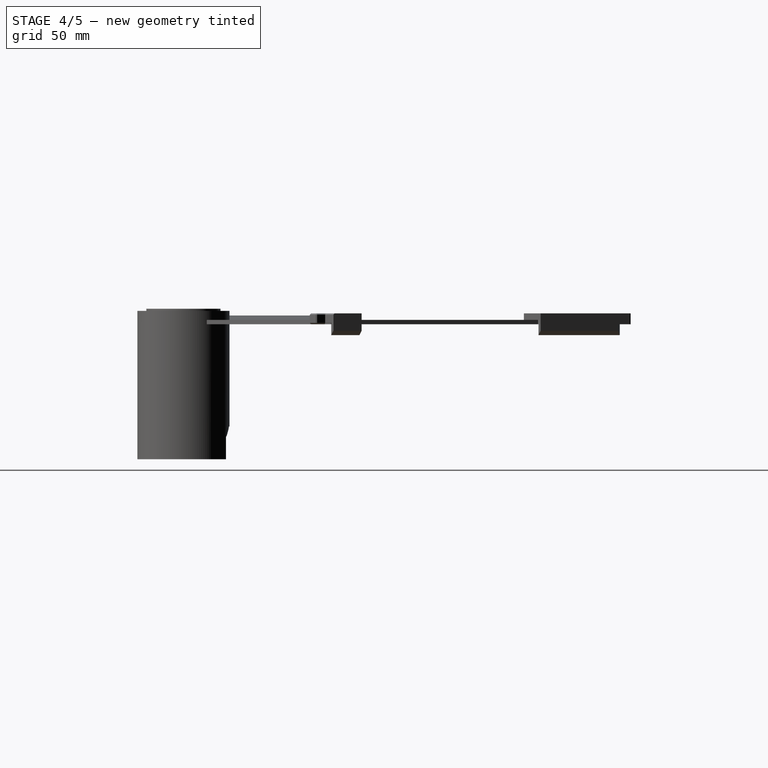
[diagram: stage 4 of 5 — right view after this stage's code; geometry added in this stage tinted green]
FEATURE [PartDesign::Pocket] Pocket003
  BaseFeature = -> Pad002
  Length = 5
  Length2 = 100
  Profile = -> Sketch007
  Refine = true
  Type = 1
FEATURE [Sketcher::SketchObject] Sketch008  label="SideLockerRidge"
  ExternalGeometry = -> [Sketch003]
  FullyConstrained = true
  MapMode = 5
  Support = -> [XY_Plane001]
  expr: .AttachmentOffset.Base.z = <<Sketch002>>.AttachmentOffset.Base.z
  sketch-geometry (4):
    g0: LineSegment StartX=-104.909 StartY=58.2599 StartZ=0 EndX=-87.5887 EndY=48.2599 EndZ=0
    g1: LineSegment StartX=-88.5887 StartY=46.5279 StartZ=0 EndX=-105.909 EndY=56.5279 EndZ=0
    g2: LineSegment StartX=-104.909 StartY=58.2599 StartZ=0 EndX=-105.909 EndY=56.5279 EndZ=0
    g3: LineSegment StartX=-87.5887 StartY=48.2599 StartZ=0 EndX=-88.5887 EndY=46.5279 EndZ=0
  constraints (12):
    c: Parallel(g1,g0)
    c: Perpendicular(g0,g2)
    c: Coincident(g1,g2)
    c: Coincident(g0,g2)
    c: Distance(g2) = 2
    c: PointOnObject(g3,g-3)
    c: Perpendicular(g0,g3)
    c: Distance(g3,g0) = 20
    c: PointOnObject(g1,g-3)
    c: Coincident(g0,g3)
    c: Coincident(g1,g3)
    c: Distance(g1,g-3) = 15
FEATURE [PartDesign::Pad] Pad003  label="SideLockerRidge_"
  BaseFeature = -> Pocket003
  Direction = (1,1,1)
  Length = 2.2
  Length2 = 100
  Profile = -> Sketch008
  Refine = true
  Type = 0
  expr: Length = <<Sketch007>>.AttachmentOffset.Base.z - <<SideLockerRidge>>.AttachmentOffset.Base.z
FEATURE [Sketcher::SketchObject] Sketch009  label="SideLockerHole"
  ExternalGeometry = -> [Sketch008,ShapeBinder,Sketch003]
  FullyConstrained = true
  MapMode = 5
  Support = -> [XY_Plane001]
  sketch-geometry (16):
    g0: LineSegment StartX=-104.909 StartY=58.2599 StartZ=0 EndX=-103.909 EndY=59.992 EndZ=0
    g1: LineSegment StartX=-104.909 StartY=58.2599 StartZ=0 EndX=-117.9 EndY=65.7599 EndZ=0
    g2: LineSegment StartX=115.9 StartY=69.224 StartZ=0 EndX=102.909 EndY=61.724 EndZ=0
    g3: LineSegment StartX=102.909 StartY=61.724 StartZ=0 EndX=103.909 EndY=59.992 EndZ=0
    g4: LineSegment StartX=102.909 StartY=61.724 StartZ=0 EndX=85.5887 EndY=51.724 EndZ=0
    g5: LineSegment StartX=85.5887 StartY=51.724 StartZ=0 EndX=84.5887 EndY=53.4561 EndZ=0
    g6: LineSegment StartX=84.5887 StartY=53.4561 StartZ=0 EndX=101.909 EndY=63.4561 EndZ=0
    g7: LineSegment StartX=101.909 StartY=63.4561 StartZ=0 EndX=102.909 EndY=61.724 EndZ=0
    g8: LineSegment StartX=83.8308 StartY=53.1687 StartZ=0 EndX=84.9608 EndY=51.2115 EndZ=0
    g9: LineSegment StartX=84.9608 StartY=51.2115 StartZ=0 EndX=103.667 EndY=62.0115 EndZ=0
    g10: LineSegment StartX=103.667 StartY=62.0115 StartZ=0 EndX=102.537 EndY=63.9687 EndZ=0
    g11: LineSegment StartX=102.537 StartY=63.9687 StartZ=0 EndX=83.8308 EndY=53.1687 EndZ=0
    g12: LineSegment StartX=85.5887 StartY=51.724 StartZ=0 EndX=84.8958 EndY=51.324 EndZ=0
    g13: LineSegment StartX=85.5887 StartY=51.724 StartZ=0 EndX=85.6537 EndY=51.6115 EndZ=0
    g14: LineSegment StartX=101.909 StartY=63.4561 StartZ=0 EndX=101.844 EndY=63.5687 EndZ=0
    g15: LineSegment StartX=101.909 StartY=63.4561 StartZ=0 EndX=102.602 EndY=63.8561 EndZ=0
  constraints (48):
    c: PointOnObject(g0,g-4)
    c: PointOnObject(g1,g-7)
    c: Parallel(g1,g-4)
    c: Perpendicular(g-4,g0)
    c: Coincident(g1,g0)
    c: Coincident(g1,g-5)
    c: PointOnObject(g2,g-9)
    c: Coincident(g3,g2)
    c: PointOnObject(g3,g-10)
    c: Parallel(g2,g-10)
    c: Parallel(g3,g-9)
    c: Equal(g3,g0)
    c: Equal(g2,g1)
    c: Coincident(g2,g4)
    c: Coincident(g4,g5)
    c: Coincident(g5,g6)
    c: Coincident(g6,g7)
    c: Coincident(g7,g4)
    c: Parallel(g4,g6)
    c: Parallel(g6,g-10)
    c: Parallel(g5,g7)
    c: Parallel(g7,g-9)
    c: Equal(g7,g-8)
    c: Equal(g4,g-5)
    c: Coincident(g8,g9)
    c: Coincident(g9,g10)
    c: Coincident(g10,g11)
    c: Coincident(g11,g8)
    c: Parallel(g8,g5)
    c: Parallel(g7,g10)
    c: Parallel(g11,g6)
    c: Parallel(g4,g9)
    c: Coincident(g12,g4)
    c: PointOnObject(g12,g8)
    c: Coincident(g13,g4)
    c: PointOnObject(g13,g9)
    c: Perpendicular(g8,g12)
    c: Perpendicular(g9,g13)
    c: Coincident(g14,g6)
    c: PointOnObject(g14,g11)
    c: Coincident(g15,g6)
    c: PointOnObject(g15,g10)
    c: Perpendicular(g11,g14)
    c: Perpendicular(g10,g15)
    c: Distance(g14,g10) = 0.8
    c: Distance(g15,g10) = 0.13
    c: Equal(g14,g13)
    c: Equal(g12,g15)
FEATURE [PartDesign::Pocket] Pocket004  label="SideLockerHole_"
  BaseFeature = -> Pad003
  Length = 5
  Length2 = 100
  Profile = -> Sketch009
  Reversed = true
  Type = 1
FEATURE [PartDesign::Pocket] Pocket002  label="CentralLocker_"
  BaseFeature = -> Pocket004
  Length = 1
  Length2 = 100
  Profile = -> Sketch006
  Refine = true
  Reversed = true
  Type = 0
FEATURE [PartDesign::Chamfer] Chamfer002  label="LockerChamfer"
  Angle = 45
  Base = -> Pocket002 [Face22,Edge21,Edge19,Edge18,Edge20,Edge74,Edge16]
  BaseFeature = -> Pocket002
  ChamferType = 0
  FlipDirection = false
  Size = 0.4
  Size2 = 1
  SupportTransform = false
FEATURE [PartDesign::Chamfer] Chamfer  label="LockerInnerEdgeChamfer"
  Angle = 45
  Base = -> Chamfer002 [Edge74]
  BaseFeature = -> Chamfer002
  ChamferType = 0
  FlipDirection = false
  Size = 1.99
  Size2 = 1
  SupportTransform = false
FEATURE [PartDesign::Pocket] Pocket
  BaseFeature = -> Chamfer
  Length = 5
  Length2 = 100
  Profile = -> Sketch004
  Reversed = true
  Type = 1
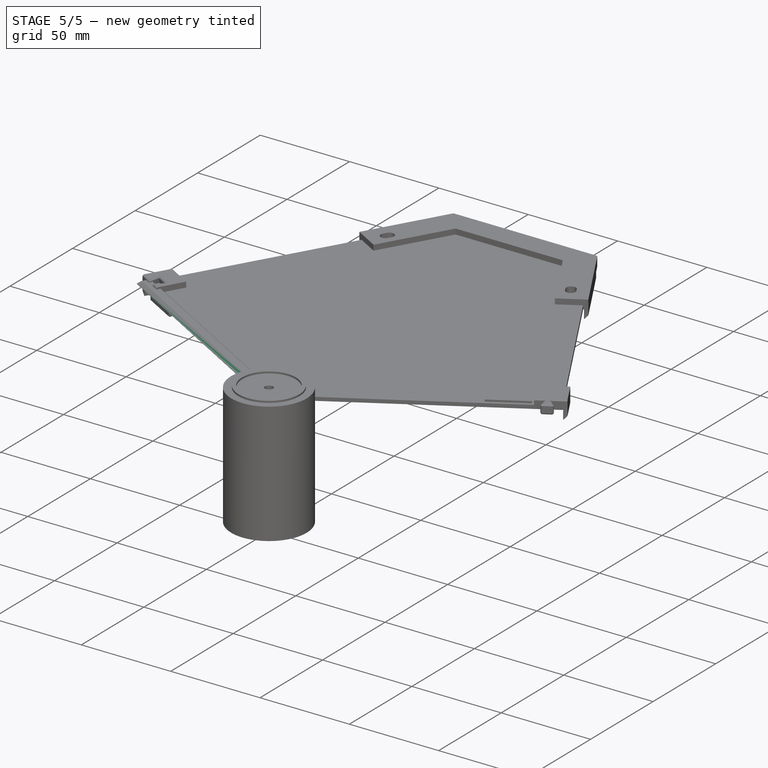
[diagram: stage 5 of 5 — iso view after this stage's code; geometry added in this stage tinted green]
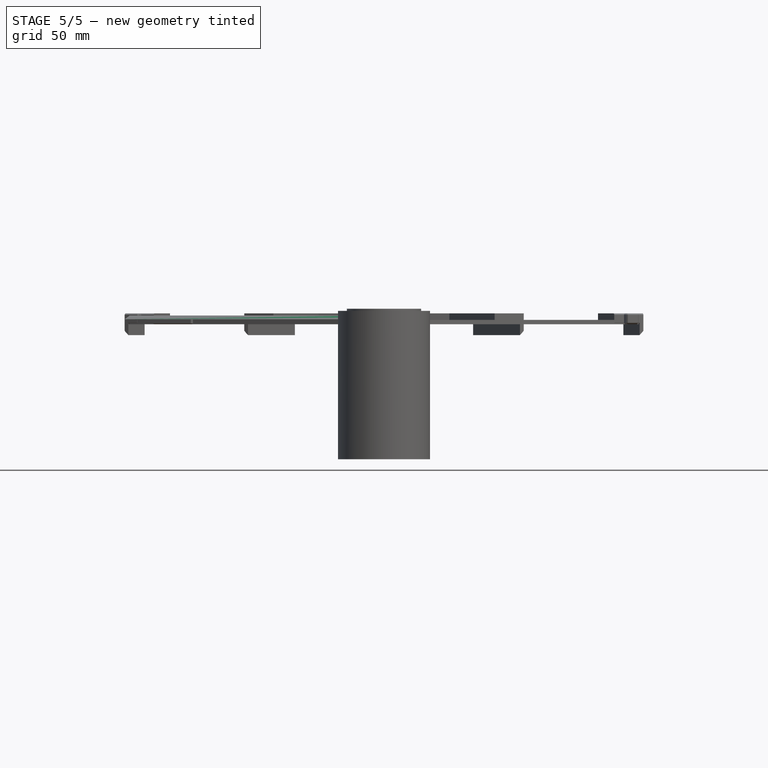
[diagram: stage 5 of 5 — front view after this stage's code; geometry added in this stage tinted green]
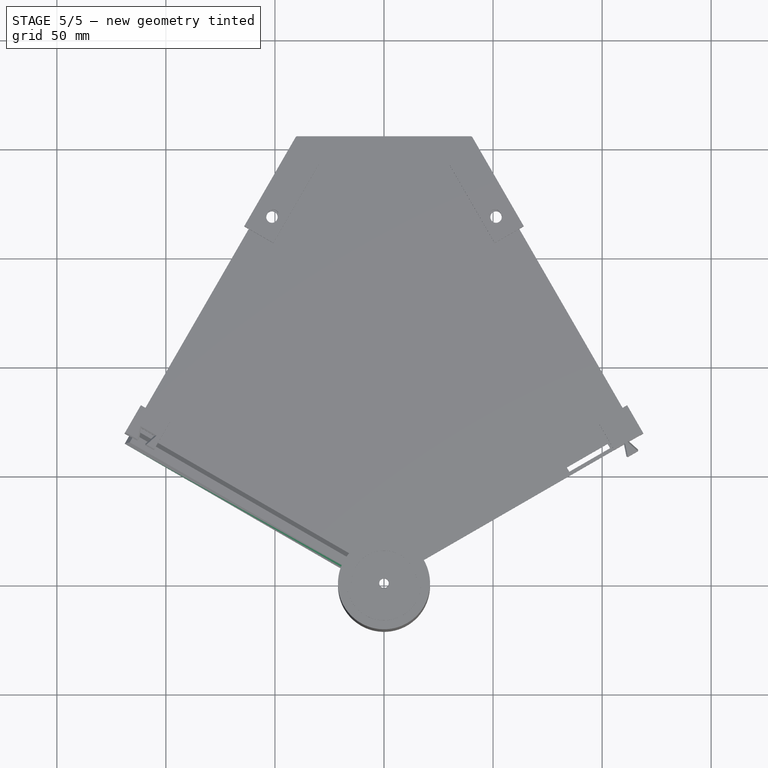
[diagram: stage 5 of 5 — top view after this stage's code; geometry added in this stage tinted green]
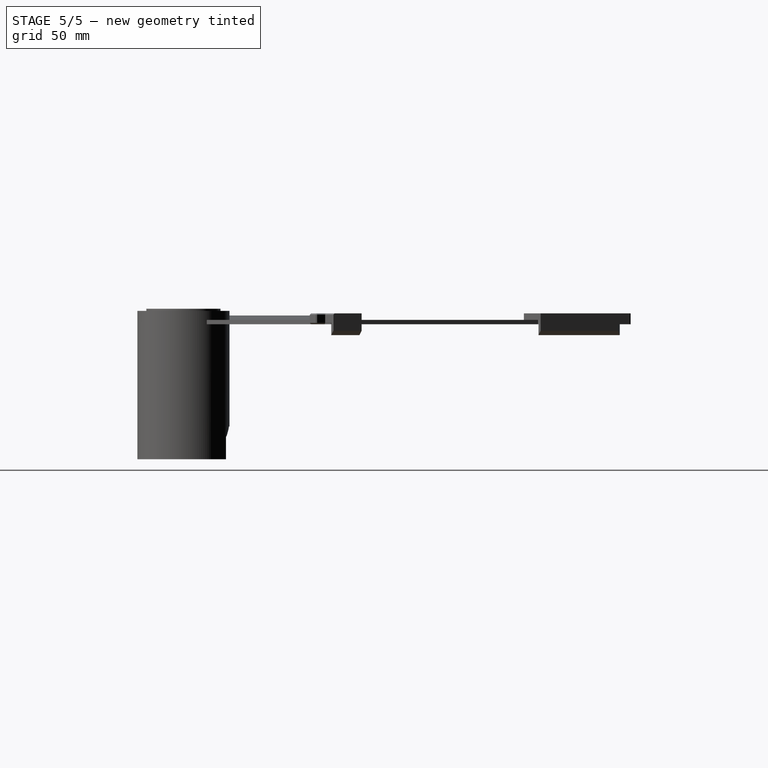
[diagram: stage 5 of 5 — right view after this stage's code; geometry added in this stage tinted green]
FEATURE [PartDesign::Pocket] Pocket001
  BaseFeature = -> Pocket
  Length = 5
  Length2 = 100
  Profile = -> Sketch005
  Reversed = true
  Type = 1
FEATURE [Sketcher::SketchObject] Sketch010
  AttachmentOffset = pos=(0,0,2) rot=(0,0,1;0rad)
  ExternalGeometry = -> [ShapeBinder]
  FullyConstrained = true
  MapMode = 5
  Placement = pos=(0,0,2) rot=(0,0,1;0rad)
  Support = -> [XY_Plane001]
  expr: .AttachmentOffset.Base.z = <<Sketch002>>.AttachmentOffset.Base.z + <<Pad001>>.Length
  sketch-geometry (2):
    g0: Circle CenterX=-51.3708 CenterY=167.991 CenterZ=0 NormalX=0 NormalY=0 NormalZ=1 AngleXU=0 Radius=4
    g1: Circle CenterX=51.3708 CenterY=167.991 CenterZ=0 NormalX=0 NormalY=0 NormalZ=1 AngleXU=0 Radius=4
  constraints (4):
    c: Coincident(g0,g-3)
    c: Coincident(g1,g-4)
    c: Radius(g0) = 4
    c: Equal(g0,g1)
FEATURE [PartDesign::Pocket] Pocket005
  BaseFeature = -> Pocket001
  Length = 1
  Length2 = 100
  Profile = -> Sketch010
  Type = 0
FEATURE [PartDesign::Chamfer] Chamfer001
  Angle = 45
  Base = -> Pocket005 [Edge26,Edge25,Edge4]
  BaseFeature = -> Pocket005
  ChamferType = 0
  FlipDirection = false
  Size = 1.7
  Size2 = 1
  SupportTransform = false
FEATURE [PartDesign::Body] Body001  label="Cover"
  Group = -> [ShapeBinder,Sketch002,Pad001,Sketch003,Pad002,Sketch004,Sketch005,Sketch007,Pocket003,Sketch008,Pad003,Sketch009,Pocket004,Sketch006,Pocket002,Chamfer002,Chamfer,Pocket,Pocket001,Sketch010,Pocket005,Chamfer001]
  Origin = -> Origin001
  Tip = -> Chamfer001
FEATURE [PartDesign::FeatureBase] Clone
  BaseFeature = -> Body001
FEATURE [PartDesign::Body] Body002
  BaseFeature = -> Body001
  Group = -> [Clone]
  Origin = -> Origin002
  Placement = pos=(0,0,0) rot=(0,0,1;2.0944rad)
  Tip = -> Clone
FEATURE [PartDesign::FeatureBase] Clone001
  BaseFeature = -> Body001
FEATURE [PartDesign::Body] Body003
  BaseFeature = -> Body001
  Group = -> [Clone001]
  Origin = -> Origin003
  Placement = pos=(0,0,0) rot=(0,0,1;4.18879rad)
  Tip = -> Clone001
FEATURE [PartDesign::FeatureBase] Clone002
  BaseFeature = -> Body001
FEATURE [PartDesign::Pocket] Pocket006
  BaseFeature = -> Clone002
  Length = 5
  Length2 = 100
  Profile = -> Sketch011
  Reversed = true
  Type = 0
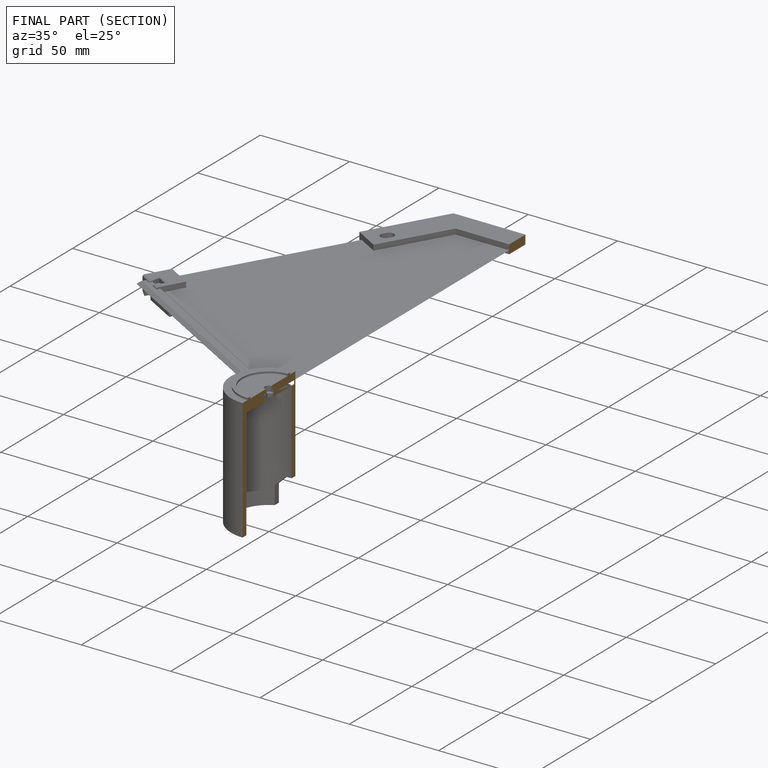
[diagram: finished part — half-section view (interior)]
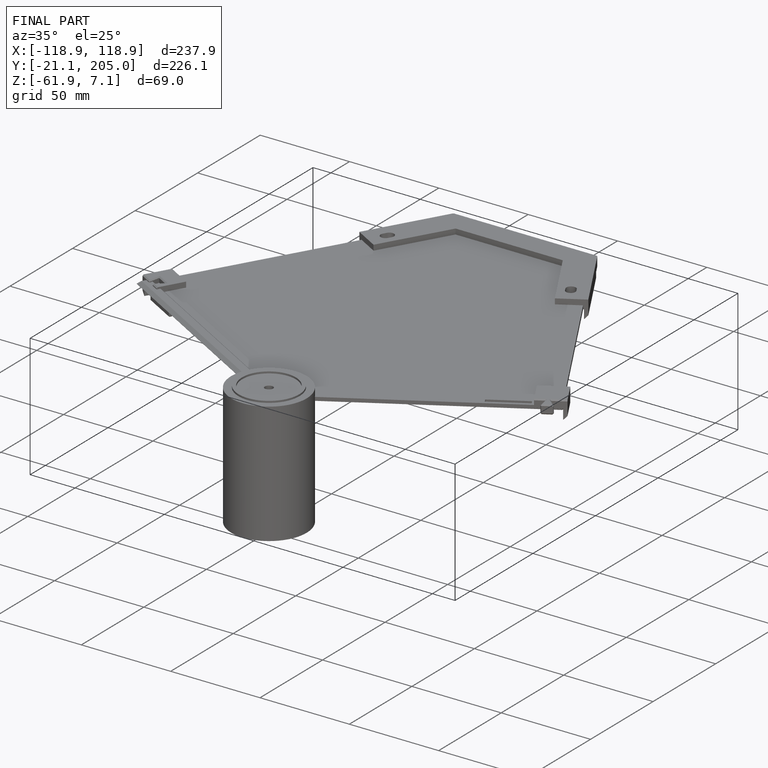
[diagram: finished part — iso view with bounding-box wireframe]
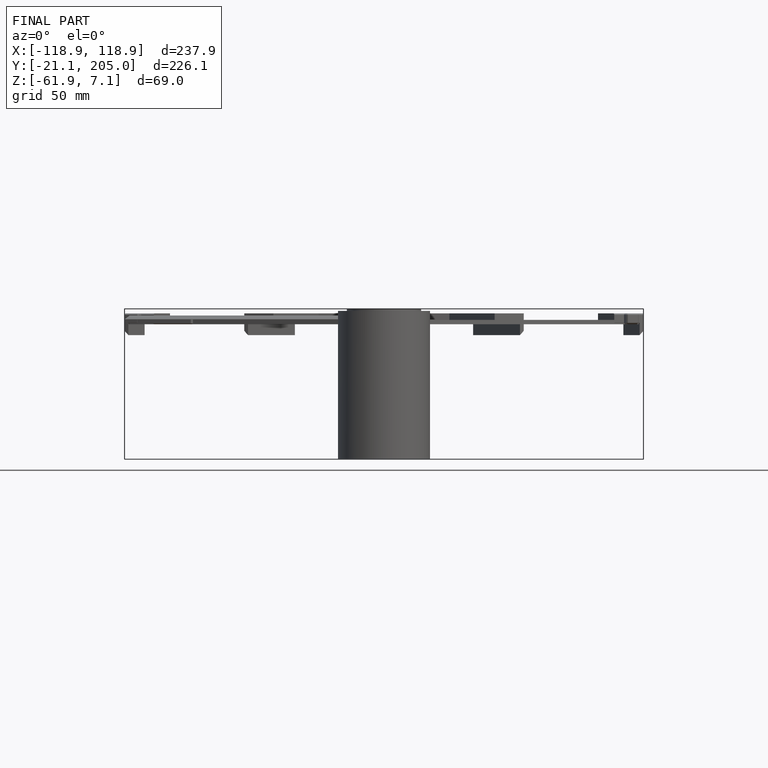
[diagram: finished part — front view with bounding-box wireframe]
